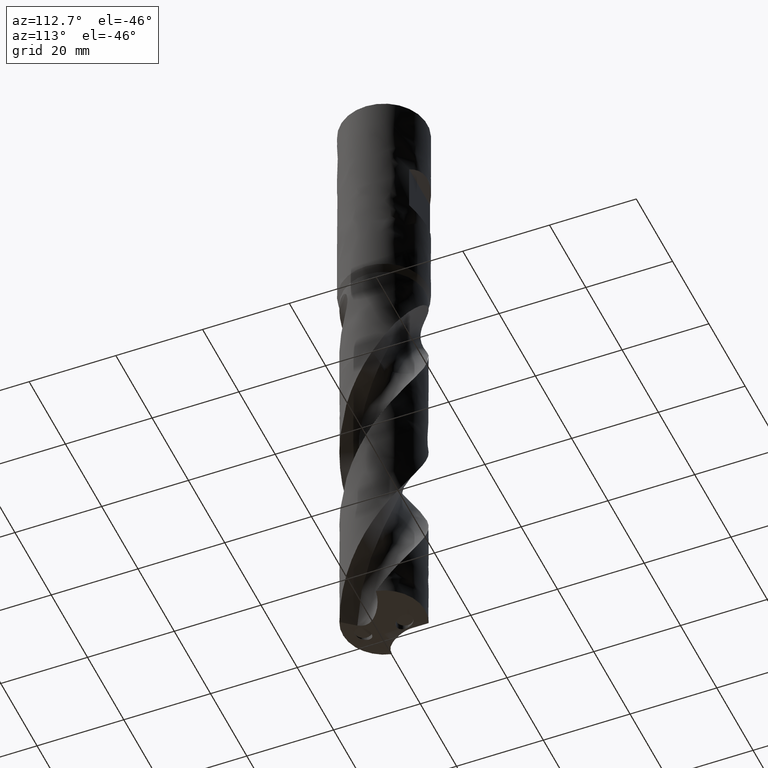
[diagram: clean part render]
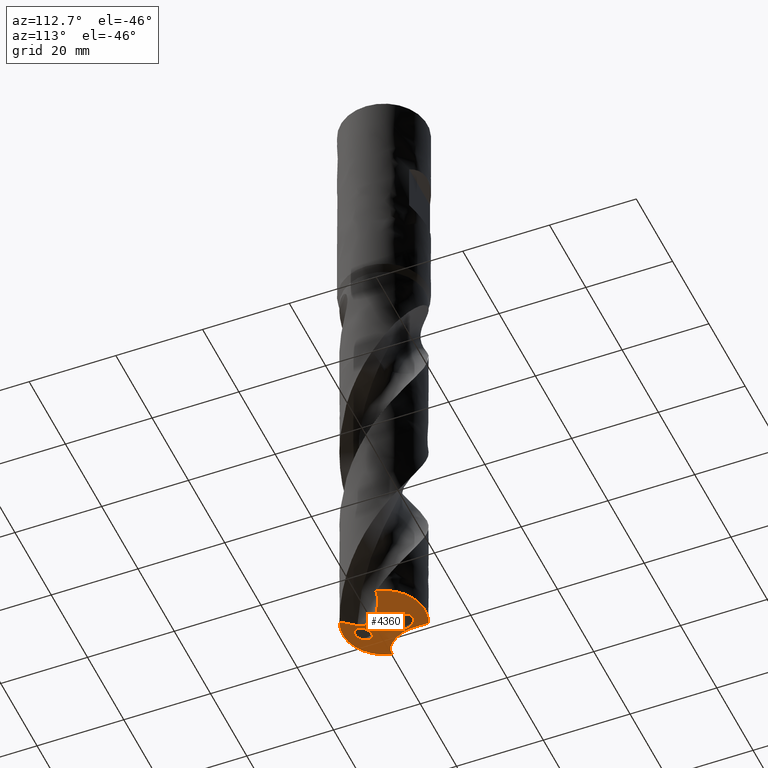
[diagram: same view with one face highlighted and labeled with its STEP entity id]
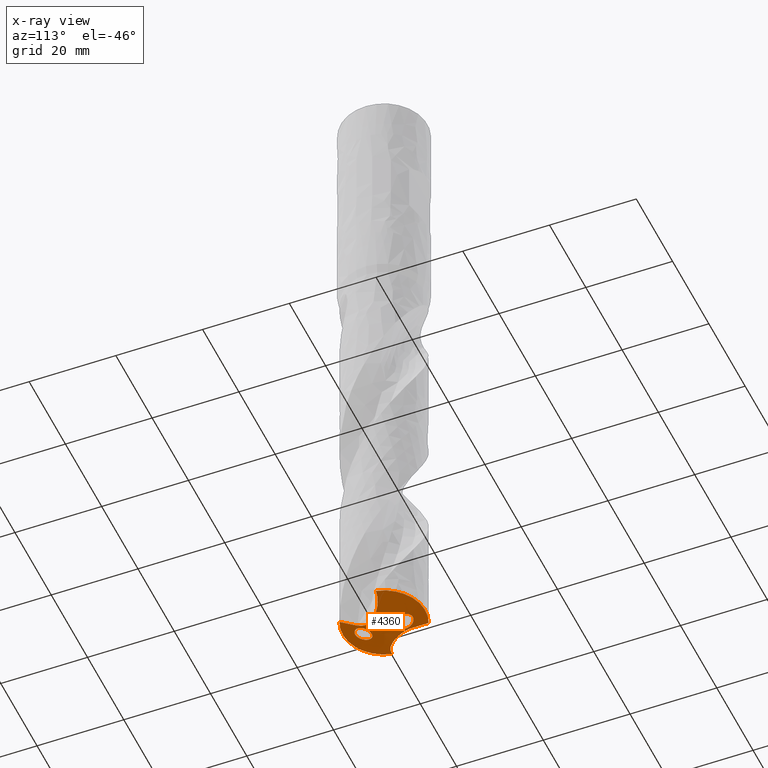
[diagram: x-ray of the same camera — body ghosted, the highlighted face saturated]
A machine part, auxiliary view. The second image highlights one B-rep face of the part: STEP entity #4360.
The next image is the same camera in x-ray: the body ghosted, the highlighted face saturated — about 0% of this face is hidden behind the body in this view.
In plain terms, the highlighted face is a freeform B-spline surface patch.
Its self-contained STEP definition (entity closure, byte-faithful):
#2106 = VERTEX_POINT('', #2107);
#2107 = CARTESIAN_POINT('', (2.57883681447537, -5.07026758404952, -150.929587940165));
#2156 = EDGE_CURVE('', #2106, #2157, #2159, .T.);
#2157 = VERTEX_POINT('', #2158);
#2158 = CARTESIAN_POINT('', (9.28584694925255, 2.00575333355252, -149.542282774471));
#2159 = B_SPLINE_CURVE_WITH_KNOTS('', 3, (#2160, #2161, #2162, #2163, #2164, #2165, #2166, #2167, #2168, #2169, #2170, #2171, #2172, #2173, #2174, #2175, #2176, #2177, #2178, #2179, #2180, #2181, #2182, #2183, #2184, #2185, #2186, #2187, #2188, #2189, #2190, #2191, #2192, #2193, #2194, #2195, #2196, #2197, #2198, #2199, #2200, #2201, #2202, #2203, #2204, #2205, #2206, #2207, #2208, #2209, #2210, #2211, #2212, #2213, #2214, #2215, #2216, #2217, #2218, #2219, #2220, #2221, #2222, #2223, #2224, #2225, #2226, #2227, #2228, #2229, #2230, #2231, #2232, #2233, #2234, #2235, #2236, #2237, #2238, #2239, #2240, #2241, #2242, #2243, #2244, #2245, #2246, #2247, #2248, #2249, #2250, #2251, #2252, #2253, #2254, #2255, #2256, #2257, #2258, #2259, #2260, #2261, #2262, #2263, #2264, #2265, #2266, #2267, #2268, #2269, #2270, #2271, #2272, #2273, #2274, #2275, #2276, #2277, #2278, #2279, #2280, #2281, #2282, #2283, #2284, #2285, #2286, #2287, #2288, #2289, #2290, #2291, #2292, #2293, #2294, #2295, #2296, #2297, #2298), .UNSPECIFIED., .F., .U., (4, 3, 3, 3, 3, 3, 3, 3, 3, 3, 3, 3, 3, 3, 3, 3, 3, 3, 3, 3, 3, 3, 3, 3, 3, 3, 3, 3, 3, 3, 3, 3, 3, 3, 3, 3, 3, 3, 3, 3, 3, 3, 3, 3, 3, 3, 4), (0., 0.295876799741462, 0.591577136931585, 0.887049416258827, 1.18223937826875, 1.4770975422446, 1.67367076070449, 1.87013688775231, 2.06650218597223, 2.26278046402579, 2.4589937744, 2.6551720202962, 2.85135110460604, 3.04756955144955, 3.24386400522145, 3.44026449857956, 3.63679062545874, 3.83344957017936, 4.03023636756879, 4.22713607463902, 4.42412704958015, 4.62118442728554, 4.81828309419723, 5.01539981283166, 5.21251445624487, 5.4096105025947, 5.49719563868032, 5.53612048859962, 5.83318275237604, 5.92088200137404, 6.00865791710984, 6.3063146272012, 6.60352186243919, 6.90034210580515, 7.19682941790859, 7.49302944792201, 7.78898015051191, 8.0847127609433, 8.38025279766103, 8.67562098526566, 8.97083405727262, 9.26590543163126, 9.56084576747776, 10.0024895095066, 10.4437505844155, 10.884649732762, 11.336184359537), .UNSPECIFIED.);
#2160 = CARTESIAN_POINT('', (2.57883681447536, -5.07026758404952, -150.929587940165));
#2161 = CARTESIAN_POINT('', (2.55664402972957, -4.97999610875059, -150.962535626137));
#2162 = CARTESIAN_POINT('', (2.53745300842377, -4.88883878155975, -150.995234205111));
#2163 = CARTESIAN_POINT('', (2.52138469255489, -4.79704617314281, -151.027528712748));
#2164 = CARTESIAN_POINT('', (2.50532595991801, -4.70530831034258, -151.059803959763));
#2165 = CARTESIAN_POINT('', (2.4923695660459, -4.61283888851676, -151.091709974194));
#2166 = CARTESIAN_POINT('', (2.48261761228788, -4.51990308544711, -151.123066725311));
#2167 = CARTESIAN_POINT('', (2.47287317969048, -4.42703895879432, -151.154399292642));
#2168 = CARTESIAN_POINT('', (2.46631788320964, -4.33360638970861, -151.185218296728));
#2169 = CARTESIAN_POINT('', (2.46303037792279, -4.23988455670242, -151.215315474139));
#2170 = CARTESIAN_POINT('', (2.45974601377553, -4.14625227286317, -151.245383894355));
#2171 = CARTESIAN_POINT('', (2.4597199195115, -4.05222276289765, -151.274766767512));
#2172 = CARTESIAN_POINT('', (2.46300145419097, -3.95808863840402, -151.303225503517));
#2173 = CARTESIAN_POINT('', (2.46627930037525, -3.86406032210669, -151.331652251468));
#2174 = CARTESIAN_POINT('', (2.4728619763419, -3.76981345405792, -151.359191262154));
#2175 = CARTESIAN_POINT('', (2.48276209074414, -3.6756535685309, -151.38557406399));
#2176 = CARTESIAN_POINT('', (2.4893622042527, -3.61287995731973, -151.40316269779));
#2177 = CARTESIAN_POINT('', (2.49744015281085, -3.55010107391373, -151.420249327317));
#2178 = CARTESIAN_POINT('', (2.50698854827938, -3.48741076010662, -151.436747827263));
#2179 = CARTESIAN_POINT('', (2.51653174186355, -3.42475459944754, -151.453237338968));
#2180 = CARTESIAN_POINT('', (2.52754946762306, -3.36215029751896, -151.469148868096));
#2181 = CARTESIAN_POINT('', (2.54002384316105, -3.29969402723752, -151.484392728042));
#2182 = CARTESIAN_POINT('', (2.55249181669639, -3.2372698102806, -151.499628764651));
#2183 = CARTESIAN_POINT('', (2.56642255712331, -3.17495591251917, -151.514206797387));
#2184 = CARTESIAN_POINT('', (2.58178626773157, -3.11285049024296, -151.528035859487));
#2185 = CARTESIAN_POINT('', (2.59714316984227, -3.05077259026437, -151.541858793176));
#2186 = CARTESIAN_POINT('', (2.61394135461035, -2.98886464025051, -151.554941711637));
#2187 = CARTESIAN_POINT('', (2.63213783960795, -2.92722614081129, -151.567195565095));
#2188 = CARTESIAN_POINT('', (2.65032830160894, -2.86560804358013, -151.579445362555));
#2189 = CARTESIAN_POINT('', (2.66992768102561, -2.80422035055334, -151.590874078225));
#2190 = CARTESIAN_POINT('', (2.69087894531983, -2.74316284925991, -151.601398640557));
#2191 = CARTESIAN_POINT('', (2.71182646549933, -2.68211625930275, -151.611921322087));
#2192 = CARTESIAN_POINT('', (2.73413880261025, -2.62136070606447, -151.621546589721));
#2193 = CARTESIAN_POINT('', (2.75774473348432, -2.56099469467241, -151.630202008246));
#2194 = CARTESIAN_POINT('', (2.78135076524386, -2.50062842529208, -151.638857463762));
#2195 = CARTESIAN_POINT('', (2.80626550388723, -2.44061296418087, -151.646548325626));
#2196 = CARTESIAN_POINT('', (2.83240442389731, -2.38104345306002, -151.653217533229));
#2197 = CARTESIAN_POINT('', (2.85854858857515, -2.32146198955956, -151.659888078981));
#2198 = CARTESIAN_POINT('', (2.88593392213147, -2.26228878272839, -151.665540582455));
#2199 = CARTESIAN_POINT('', (2.91446469742764, -2.20361316692543, -151.670137460888));
#2200 = CARTESIAN_POINT('', (2.9430065243687, -2.14491482261043, -151.674736119962));
#2201 = CARTESIAN_POINT('', (2.9727121784995, -2.08667806620786, -151.678281086605));
#2202 = CARTESIAN_POINT('', (3.00347799585069, -2.02898392729079, -151.680756968885));
#2203 = CARTESIAN_POINT('', (3.03426043310365, -1.97125862161123, -151.683234188653));
#2204 = CARTESIAN_POINT('', (3.06612221387254, -1.91404222516535, -151.684642683647));
#2205 = CARTESIAN_POINT('', (3.09895583464675, -1.85740532298867, -151.684990009858));
#2206 = CARTESIAN_POINT('', (3.13181045844044, -1.80073219130298, -151.685337558246));
#2207 = CARTESIAN_POINT('', (3.16565624391528, -1.74460762374465, -151.684622957125));
#2208 = CARTESIAN_POINT('', (3.20038621953731, -1.68909036900593, -151.682875338992));
#2209 = CARTESIAN_POINT('', (3.23513966664615, -1.633535594157, -151.68112653977));
#2210 = CARTESIAN_POINT('', (3.27079615160962, -1.57856028699467, -151.678342715362));
#2211 = CARTESIAN_POINT('', (3.3072532521997, -1.52421095281362, -151.674571364964));
#2212 = CARTESIAN_POINT('', (3.34373405442011, -1.4698262848346, -151.670797562722));
#2213 = CARTESIAN_POINT('', (3.38103334401616, -1.41604293986438, -151.666033532576));
#2214 = CARTESIAN_POINT('', (3.41905639886371, -1.3628957665487, -151.660340739429));
#2215 = CARTESIAN_POINT('', (3.45710127006806, -1.30971809916301, -151.654644679948));
#2216 = CARTESIAN_POINT('', (3.49588645738474, -1.25715507695496, -151.648016764153));
#2217 = CARTESIAN_POINT('', (3.53532695419447, -1.20523127284578, -151.640527611639));
#2218 = CARTESIAN_POINT('', (3.57478573264729, -1.15328340077266, -151.633034987718));
#2219 = CARTESIAN_POINT('', (3.61491487024592, -1.10195613064357, -151.62467788129));
#2220 = CARTESIAN_POINT('', (3.65563995163558, -1.05126561771889, -151.61553153402));
#2221 = CARTESIAN_POINT('', (3.69637876085201, -1.00055801776685, -151.606382103651));
#2222 = CARTESIAN_POINT('', (3.73772702553755, -0.950471165633108, -151.596440199906));
#2223 = CARTESIAN_POINT('', (3.77962084944915, -0.901014808314219, -151.585781889338));
#2224 = CARTESIAN_POINT('', (3.82152345132562, -0.851548088461514, -151.575121345547));
#2225 = CARTESIAN_POINT('', (3.86398365648703, -0.802698115830269, -151.563741274849));
#2226 = CARTESIAN_POINT('', (3.90694735068897, -0.754470133460901, -151.551715705922));
#2227 = CARTESIAN_POINT('', (3.94991497981705, -0.706237734023777, -151.539689035606));
#2228 = CARTESIAN_POINT('', (3.99339681259173, -0.658615491427749, -151.527013906955));
#2229 = CARTESIAN_POINT('', (4.03734739798381, -0.611605787457589, -151.51376037597));
#2230 = CARTESIAN_POINT('', (4.08129752066939, -0.564596578399966, -151.500506984516));
#2231 = CARTESIAN_POINT('', (4.12572595313734, -0.518189664344336, -151.48667240278));
#2232 = CARTESIAN_POINT('', (4.17059463708274, -0.472385882677875, -151.47232157732));
#2233 = CARTESIAN_POINT('', (4.21545908782788, -0.426586422434805, -151.457972105809));
#2234 = CARTESIAN_POINT('', (4.26077237053607, -0.381381153675602, -151.443103765563));
#2235 = CARTESIAN_POINT('', (4.30650255642346, -0.33677036219926, -151.427775875479));
#2236 = CARTESIAN_POINT('', (4.3268240424621, -0.316946310348888, -151.420964499179));
#2237 = CARTESIAN_POINT('', (4.34722906196888, -0.297238528458969, -151.414061924122));
#2238 = CARTESIAN_POINT('', (4.36771513861389, -0.277647045742633, -151.407072994136));
#2239 = CARTESIAN_POINT('', (4.37681962248502, -0.268940139999122, -151.403966952826));
#2240 = CARTESIAN_POINT('', (4.38594021358363, -0.260256113451854, -151.400843820205));
#2241 = CARTESIAN_POINT('', (4.39507670579072, -0.251594969580532, -151.397704007504));
#2242 = CARTESIAN_POINT('', (4.46480355287277, -0.185495832123551, -151.373741940326));
#2243 = CARTESIAN_POINT('', (4.53546895254429, -0.120716240172352, -151.34880574523));
#2244 = CARTESIAN_POINT('', (4.60699267224296, -0.0572596263855191, -151.323062289224));
#2245 = CARTESIAN_POINT('', (4.62810803177526, -0.0385258521850718, -151.315462260429));
#2246 = CARTESIAN_POINT('', (4.64929964020876, -0.0199062102596157, -151.307791223786));
#2247 = CARTESIAN_POINT('', (4.67056570965466, -0.00140086620684631, -151.300053028037));
#2248 = CARTESIAN_POINT('', (4.69185036991164, 0.0171206552291574, -151.292308067552));
#2249 = CARTESIAN_POINT('', (4.71321019901039, 0.0355281810353803, -151.284495620121));
#2250 = CARTESIAN_POINT('', (4.73464350781699, 0.0538215034823425, -151.276619354577));
#2251 = CARTESIAN_POINT('', (4.80732595302153, 0.115855948017136, -151.249910168235));
#2252 = CARTESIAN_POINT('', (4.88086666968423, 0.176589301410585, -151.222463583903));
#2253 = CARTESIAN_POINT('', (4.95520700466665, 0.236009581394623, -151.194407645031));
#2254 = CARTESIAN_POINT('', (5.02943508244124, 0.295340134116592, -151.166394071872));
#2255 = CARTESIAN_POINT('', (5.10448125867046, 0.353378109620916, -151.137764943778));
#2256 = CARTESIAN_POINT('', (5.18029502280543, 0.41010527239786, -151.108627605731));
#2257 = CARTESIAN_POINT('', (5.25601007026386, 0.466758571054706, -151.079528207248));
#2258 = CARTESIAN_POINT('', (5.33251069552523, 0.522119288663904, -151.049914084906));
#2259 = CARTESIAN_POINT('', (5.40975131327807, 0.576162998409096, -151.019875708476));
#2260 = CARTESIAN_POINT('', (5.48690529335385, 0.630146089510786, -150.989871024878));
#2261 = CARTESIAN_POINT('', (5.56481715199266, 0.68282869203592, -150.959435296958));
#2262 = CARTESIAN_POINT('', (5.64344390830427, 0.734180505029147, -150.928645423648));
#2263 = CARTESIAN_POINT('', (5.72199447903235, 0.785482560560381, -150.897885384259));
#2264 = CARTESIAN_POINT('', (5.80127802729124, 0.835469028531806, -150.866764142389));
#2265 = CARTESIAN_POINT('', (5.88125247044773, 0.884104140127289, -150.835347786003));
#2266 = CARTESIAN_POINT('', (5.96115959483366, 0.932698312945468, -150.803957874446));
#2267 = CARTESIAN_POINT('', (6.0417761253942, 0.979955295044922, -150.77226551584));
#2268 = CARTESIAN_POINT('', (6.12305958185854, 1.02583426205607, -150.740328252365));
#2269 = CARTESIAN_POINT('', (6.20428313887234, 1.07167941991299, -150.708414524117));
#2270 = CARTESIAN_POINT('', (6.28619276296665, 1.11615988968821, -150.676248262846));
#2271 = CARTESIAN_POINT('', (6.36874454684274, 1.15923017418759, -150.643880310553));
#2272 = CARTESIAN_POINT('', (6.4512425750523, 1.20227241238993, -150.611533435464));
#2273 = CARTESIAN_POINT('', (6.5344027081843, 1.24391708935601, -150.578976917845));
#2274 = CARTESIAN_POINT('', (6.61817874925078, 1.28411437869187, -150.546256402428));
#2275 = CARTESIAN_POINT('', (6.70190607665223, 1.32428829431295, -150.513554913169));
#2276 = CARTESIAN_POINT('', (6.78627022107372, 1.36302683158465, -150.480681118342));
#2277 = CARTESIAN_POINT('', (6.871221930887, 1.40027614380108, -150.447676694562));
#2278 = CARTESIAN_POINT('', (6.95612902744877, 1.43750589416363, -150.414689603389));
#2279 = CARTESIAN_POINT('', (7.04164571555636, 1.47325786433686, -150.381563182509));
#2280 = CARTESIAN_POINT('', (7.12771897384996, 1.50747447307794, -150.348336153818));
#2281 = CARTESIAN_POINT('', (7.21375091832843, 1.54167465838304, -150.31512507358));
#2282 = CARTESIAN_POINT('', (7.3003627275211, 1.57435038130352, -150.281804251988));
#2283 = CARTESIAN_POINT('', (7.38749691182454, 1.60544060421778, -150.248410301022));
#2284 = CARTESIAN_POINT('', (7.47459240062966, 1.63651702024697, -150.215031180005));
#2285 = CARTESIAN_POINT('', (7.56223498040524, 1.66601827994481, -150.181569320794));
#2286 = CARTESIAN_POINT('', (7.65036198831815, 1.69388017761641, -150.148059939157));
#2287 = CARTESIAN_POINT('', (7.78232339480656, 1.73560059104306, -150.097882981649));
#2288 = CARTESIAN_POINT('', (7.91544817961462, 1.77366884534835, -150.047570798149));
#2289 = CARTESIAN_POINT('', (8.04950034370199, 1.8078572506004, -149.997238869778));
#2290 = CARTESIAN_POINT('', (8.18343635680457, 1.84201603292942, -149.946950552065));
#2291 = CARTESIAN_POINT('', (8.31839683501219, 1.87232641096813, -149.89660539396));
#2292 = CARTESIAN_POINT('', (8.45411047589626, 1.89854948316567, -149.846318705095));
#2293 = CARTESIAN_POINT('', (8.58971280315149, 1.92475104694809, -149.796073261855));
#2294 = CARTESIAN_POINT('', (8.72617569100644, 1.94689246882277, -149.745845908432));
#2295 = CARTESIAN_POINT('', (8.86318640300289, 1.96472752523066, -149.695755058677));
#2296 = CARTESIAN_POINT('', (9.00350212131969, 1.9829928032854, -149.64445590504));
#2297 = CARTESIAN_POINT('', (9.14451535868284, 1.99675685429352, -149.59325501418));
#2298 = CARTESIAN_POINT('', (9.28584694925256, 2.00575333355252, -149.542282774471));
#2659 = VERTEX_POINT('', #2660);
#2660 = CARTESIAN_POINT('', (3.81613556728855, -8.6998338680733, -149.542282774471));
#2844 = EDGE_CURVE('', #2106, #2659, #2845, .T.);
#2845 = B_SPLINE_CURVE_WITH_KNOTS('', 3, (#2846, #2847, #2848, #2849, #2850, #2851, #2852, #2853, #2854, #2855, #2856, #2857, #2858, #2859, #2860, #2861, #2862, #2863, #2864, #2865, #2866, #2867, #2868, #2869, #2870, #2871, #2872, #2873, #2874, #2875, #2876), .UNSPECIFIED., .F., .U., (4, 3, 3, 3, 3, 3, 3, 3, 3, 3, 4), (0., 0.443762066677287, 0.88743309214222, 1.33104084829736, 1.77460566131111, 2.21814255740817, 2.66166274186849, 3.10517463095875, 3.5486845809453, 3.99219740945982, 4.08242864537849), .UNSPECIFIED.);
#2846 = CARTESIAN_POINT('', (2.57883681447537, -5.07026758404952, -150.929587940165));
#2847 = CARTESIAN_POINT('', (2.61212200626033, -5.20565858623578, -150.880172327882));
#2848 = CARTESIAN_POINT('', (2.64669070493799, -5.34067312312604, -150.830571611274));
#2849 = CARTESIAN_POINT('', (2.68253283982852, -5.47529061588098, -150.780832268563));
#2850 = CARTESIAN_POINT('', (2.7183676214285, -5.60988049081848, -150.731103130263));
#2851 = CARTESIAN_POINT('', (2.75547824916739, -5.74408448520157, -150.681231129132));
#2852 = CARTESIAN_POINT('', (2.79385345874391, -5.87787948279049, -150.631253182853));
#2853 = CARTESIAN_POINT('', (2.83222319585799, -6.01165540066344, -150.581282363634));
#2854 = CARTESIAN_POINT('', (2.87186026341639, -6.14503326562544, -150.531201426819));
#2855 = CARTESIAN_POINT('', (2.91275235583009, -6.27798821036482, -150.481040334829));
#2856 = CARTESIAN_POINT('', (2.95364048971312, -6.41093028449292, -150.430884098648));
#2857 = CARTESIAN_POINT('', (2.99578669030979, -6.54346018932787, -150.380643586255));
#2858 = CARTESIAN_POINT('', (3.03917771707103, -6.67555187556182, -150.330343607943));
#2859 = CARTESIAN_POINT('', (3.08256601290401, -6.80763524825851, -150.280046795391));
#2860 = CARTESIAN_POINT('', (3.12720243624613, -6.93929097593005, -150.229686439339));
#2861 = CARTESIAN_POINT('', (3.17307288995943, -7.07049224480407, -150.179283468861));
#2862 = CARTESIAN_POINT('', (3.21894161536022, -7.20168857026083, -150.128882397472));
#2863 = CARTESIAN_POINT('', (3.26604790620775, -7.33244084215817, -150.078434672734));
#2864 = CARTESIAN_POINT('', (3.31437686979033, -7.4627217930424, -150.027958253525));
#2865 = CARTESIAN_POINT('', (3.3627049294532, -7.59300030721972, -149.977482778401));
#2866 = CARTESIAN_POINT('', (3.41225941046014, -7.7228177422831, -149.926974605778));
#2867 = CARTESIAN_POINT('', (3.46302467457314, -7.85214661177818, -149.876449387612));
#2868 = CARTESIAN_POINT('', (3.51378971673243, -7.98147491582712, -149.82592439035));
#2869 = CARTESIAN_POINT('', (3.56576948783709, -8.11032473535562, -149.775378378959));
#2870 = CARTESIAN_POINT('', (3.61894764713007, -8.23866854461327, -149.724825188345));
#2871 = CARTESIAN_POINT('', (3.67212615156709, -8.36701318686518, -149.674271669623));
#2872 = CARTESIAN_POINT('', (3.72650717371645, -8.49486173993644, -149.62370703692));
#2873 = CARTESIAN_POINT('', (3.78207370872626, -8.62218677821446, -149.573143674703));
#2874 = CARTESIAN_POINT('', (3.79337853872733, -8.64809064125648, -149.562856723861));
#2875 = CARTESIAN_POINT('', (3.80473254038587, -8.67397308120538, -149.552569724433));
#2876 = CARTESIAN_POINT('', (3.81613556728855, -8.6998338680733, -149.542282774471));
#3208 = VERTEX_POINT('', #3209);
#3209 = CARTESIAN_POINT('', (-9.28584694925255, -2.00575333355252, -149.542282774471));
#3222 = EDGE_CURVE('', #2659, #3208, #3223, .T.);
#3223 = CIRCLE('', #3224, 9.5);
#3224 = AXIS2_PLACEMENT_3D('', #3225, #3226, #3227);
#3225 = CARTESIAN_POINT('', (5.60693753781497E-31, 9.15682389684722E-15, -149.542282774471));
#3226 = DIRECTION('', (3.74939945665464E-33, 6.12323399573677E-17, -1.));
#3227 = DIRECTION('', (-1., 6.12323399573677E-17, 0.));
#3255 = VERTEX_POINT('', #3256);
#3256 = CARTESIAN_POINT('', (-2.57883681447538, 5.07026758404953, -150.929587940165));
#3305 = EDGE_CURVE('', #3255, #3306, #3308, .T.);
#3306 = VERTEX_POINT('', #3307);
#3307 = CARTESIAN_POINT('', (-4.67217595776878, 9.5505086666536E-15, -151.299467022118));
#3308 = B_SPLINE_CURVE_WITH_KNOTS('', 3, (#3309, #3310, #3311, #3312, #3313, #3314, #3315, #3316, #3317, #3318, #3319, #3320, #3321, #3322, #3323, #3324, #3325, #3326, #3327, #3328, #3329, #3330, #3331, #3332, #3333, #3334, #3335, #3336, #3337, #3338, #3339, #3340, #3341, #3342, #3343, #3344, #3345, #3346, #3347, #3348, #3349, #3350, #3351, #3352, #3353, #3354, #3355, #3356, #3357, #3358, #3359, #3360, #3361, #3362, #3363, #3364, #3365, #3366, #3367, #3368, #3369, #3370, #3371, #3372, #3373, #3374, #3375, #3376, #3377, #3378, #3379, #3380, #3381, #3382, #3383, #3384, #3385, #3386, #3387, #3388, #3389, #3390, #3391, #3392, #3393, #3394, #3395, #3396), .UNSPECIFIED., .F., .U., (4, 3, 3, 3, 3, 3, 3, 3, 3, 3, 3, 3, 3, 3, 3, 3, 3, 3, 3, 3, 3, 3, 3, 3, 3, 3, 3, 3, 3, 4), (0., 0.29587679974146, 0.591577136931556, 0.887049416258796, 1.18223937826871, 1.47709754224455, 1.67367076070444, 1.87013688775226, 2.06650218597216, 2.26278046402572, 2.45899377439993, 2.65517202029613, 2.85135110460597, 3.04756955144947, 3.24386400522137, 3.44026449857948, 3.63679062545866, 3.83344957017929, 4.03023636756871, 4.22713607463894, 4.42412704958006, 4.62118442728545, 4.81828309419714, 5.01539981283158, 5.21251445624479, 5.40961050259462, 5.49719563868023, 5.53612048859953, 5.83318275237596, 5.92309527739643), .UNSPECIFIED.);
#3309 = CARTESIAN_POINT('', (-2.57883681447536, 5.07026758404954, -150.929587940165));
#3310 = CARTESIAN_POINT('', (-2.55664402972957, 4.97999610875061, -150.962535626137));
#3311 = CARTESIAN_POINT('', (-2.53745300842377, 4.88883878155978, -150.995234205111));
#3312 = CARTESIAN_POINT('', (-2.52138469255489, 4.79704617314283, -151.027528712748));
#3313 = CARTESIAN_POINT('', (-2.50532595991801, 4.70530831034262, -151.059803959763));
#3314 = CARTESIAN_POINT('', (-2.4923695660459, 4.61283888851679, -151.091709974194));
#3315 = CARTESIAN_POINT('', (-2.48261761228788, 4.51990308544715, -151.123066725311));
#3316 = CARTESIAN_POINT('', (-2.47287317969049, 4.42703895879436, -151.154399292642));
#3317 = CARTESIAN_POINT('', (-2.46631788320964, 4.33360638970865, -151.185218296728));
#3318 = CARTESIAN_POINT('', (-2.46303037792279, 4.23988455670246, -151.215315474139));
#3319 = CARTESIAN_POINT('', (-2.45974601377553, 4.14625227286322, -151.245383894355));
#3320 = CARTESIAN_POINT('', (-2.4597199195115, 4.05222276289771, -151.274766767512));
#3321 = CARTESIAN_POINT('', (-2.46300145419097, 3.95808863840408, -151.303225503517));
#3322 = CARTESIAN_POINT('', (-2.46627930037526, 3.86406032210675, -151.331652251468));
#3323 = CARTESIAN_POINT('', (-2.4728619763419, 3.76981345405798, -151.359191262154));
#3324 = CARTESIAN_POINT('', (-2.48276209074413, 3.67565356853096, -151.38557406399));
#3325 = CARTESIAN_POINT('', (-2.4893622042527, 3.61287995731979, -151.40316269779));
#3326 = CARTESIAN_POINT('', (-2.49744015281084, 3.55010107391379, -151.420249327317));
#3327 = CARTESIAN_POINT('', (-2.50698854827938, 3.48741076010668, -151.436747827263));
#3328 = CARTESIAN_POINT('', (-2.51653174186354, 3.4247545994476, -151.453237338968));
#3329 = CARTESIAN_POINT('', (-2.52754946762305, 3.36215029751902, -151.469148868096));
#3330 = CARTESIAN_POINT('', (-2.54002384316103, 3.29969402723759, -151.484392728042));
#3331 = CARTESIAN_POINT('', (-2.55249181669637, 3.23726981028068, -151.499628764651));
#3332 = CARTESIAN_POINT('', (-2.5664225571233, 3.17495591251924, -151.514206797387));
#3333 = CARTESIAN_POINT('', (-2.58178626773156, 3.11285049024304, -151.528035859487));
#3334 = CARTESIAN_POINT('', (-2.59714316984226, 3.05077259026445, -151.541858793176));
#3335 = CARTESIAN_POINT('', (-2.61394135461033, 2.98886464025059, -151.554941711637));
#3336 = CARTESIAN_POINT('', (-2.63213783960793, 2.92722614081137, -151.567195565095));
#3337 = CARTESIAN_POINT('', (-2.65032830160892, 2.86560804358022, -151.579445362555));
#3338 = CARTESIAN_POINT('', (-2.66992768102559, 2.80422035055342, -151.590874078225));
#3339 = CARTESIAN_POINT('', (-2.69087894531981, 2.74316284925999, -151.601398640557));
#3340 = CARTESIAN_POINT('', (-2.7118264654993, 2.68211625930284, -151.611921322087));
#3341 = CARTESIAN_POINT('', (-2.73413880261022, 2.62136070606456, -151.621546589721));
#3342 = CARTESIAN_POINT('', (-2.75774473348429, 2.5609946946725, -151.630202008246));
#3343 = CARTESIAN_POINT('', (-2.78135076524383, 2.50062842529217, -151.638857463762));
#3344 = CARTESIAN_POINT('', (-2.8062655038872, 2.44061296418096, -151.646548325626));
#3345 = CARTESIAN_POINT('', (-2.83240442389728, 2.3810434530601, -151.653217533229));
#3346 = CARTESIAN_POINT('', (-2.85854858857512, 2.32146198955964, -151.659888078981));
#3347 = CARTESIAN_POINT('', (-2.88593392213143, 2.26228878272848, -151.665540582455));
#3348 = CARTESIAN_POINT('', (-2.9144646974276, 2.20361316692551, -151.670137460888));
#3349 = CARTESIAN_POINT('', (-2.94300652436866, 2.14491482261052, -151.674736119962));
#3350 = CARTESIAN_POINT('', (-2.97271217849946, 2.08667806620795, -151.678281086605));
#3351 = CARTESIAN_POINT('', (-3.00347799585065, 2.02898392729088, -151.680756968885));
#3352 = CARTESIAN_POINT('', (-3.03426043310362, 1.97125862161132, -151.683234188653));
#3353 = CARTESIAN_POINT('', (-3.0661222138725, 1.91404222516544, -151.684642683647));
#3354 = CARTESIAN_POINT('', (-3.09895583464671, 1.85740532298876, -151.684990009858));
#3355 = CARTESIAN_POINT('', (-3.1318104584404, 1.80073219130307, -151.685337558246));
#3356 = CARTESIAN_POINT('', (-3.16565624391524, 1.74460762374474, -151.684622957125));
#3357 = CARTESIAN_POINT('', (-3.20038621953726, 1.68909036900601, -151.682875338992));
#3358 = CARTESIAN_POINT('', (-3.23513966664611, 1.63353559415709, -151.68112653977));
#3359 = CARTESIAN_POINT('', (-3.27079615160958, 1.57856028699475, -151.678342715362));
#3360 = CARTESIAN_POINT('', (-3.30725325219966, 1.5242109528137, -151.674571364964));
#3361 = CARTESIAN_POINT('', (-3.34373405442006, 1.46982628483468, -151.670797562722));
#3362 = CARTESIAN_POINT('', (-3.38103334401612, 1.41604293986446, -151.666033532576));
#3363 = CARTESIAN_POINT('', (-3.41905639886366, 1.36289576654878, -151.660340739429));
#3364 = CARTESIAN_POINT('', (-3.45710127006801, 1.3097180991631, -151.654644679948));
#3365 = CARTESIAN_POINT('', (-3.49588645738469, 1.25715507695504, -151.648016764153));
#3366 = CARTESIAN_POINT('', (-3.53532695419442, 1.20523127284586, -151.640527611639));
#3367 = CARTESIAN_POINT('', (-3.57478573264725, 1.15328340077275, -151.633034987718));
#3368 = CARTESIAN_POINT('', (-3.61491487024586, 1.10195613064366, -151.62467788129));
#3369 = CARTESIAN_POINT('', (-3.65563995163553, 1.05126561771898, -151.61553153402));
#3370 = CARTESIAN_POINT('', (-3.69637876085196, 1.00055801776693, -151.606382103651));
#3371 = CARTESIAN_POINT('', (-3.73772702553749, 0.950471165633193, -151.596440199906));
#3372 = CARTESIAN_POINT('', (-3.77962084944909, 0.901014808314304, -151.585781889338));
#3373 = CARTESIAN_POINT('', (-3.82152345132556, 0.851548088461596, -151.575121345547));
#3374 = CARTESIAN_POINT('', (-3.86398365648698, 0.80269811583035, -151.56374127485));
#3375 = CARTESIAN_POINT('', (-3.90694735068892, 0.75447013346098, -151.551715705922));
#3376 = CARTESIAN_POINT('', (-3.94991497981699, 0.706237734023855, -151.539689035606));
#3377 = CARTESIAN_POINT('', (-3.99339681259168, 0.658615491427825, -151.527013906955));
#3378 = CARTESIAN_POINT('', (-4.03734739798376, 0.611605787457665, -151.51376037597));
#3379 = CARTESIAN_POINT('', (-4.08129752066934, 0.564596578400043, -151.500506984516));
#3380 = CARTESIAN_POINT('', (-4.12572595313728, 0.518189664344416, -151.48667240278));
#3381 = CARTESIAN_POINT('', (-4.17059463708268, 0.472385882677956, -151.47232157732));
#3382 = CARTESIAN_POINT('', (-4.21545908782782, 0.426586422434884, -151.457972105809));
#3383 = CARTESIAN_POINT('', (-4.26077237053601, 0.381381153675684, -151.443103765563));
#3384 = CARTESIAN_POINT('', (-4.3065025564234, 0.33677036219934, -151.427775875479));
#3385 = CARTESIAN_POINT('', (-4.32682404246204, 0.316946310348969, -151.420964499179));
#3386 = CARTESIAN_POINT('', (-4.34722906196882, 0.297238528459046, -151.414061924122));
#3387 = CARTESIAN_POINT('', (-4.36771513861382, 0.277647045742712, -151.407072994136));
#3388 = CARTESIAN_POINT('', (-4.37681962248496, 0.268940139999201, -151.403966952826));
#3389 = CARTESIAN_POINT('', (-4.38594021358357, 0.260256113451934, -151.400843820205));
#3390 = CARTESIAN_POINT('', (-4.39507670579066, 0.251594969580611, -151.397704007504));
#3391 = CARTESIAN_POINT('', (-4.46480355287271, 0.18549583212363, -151.373741940326));
#3392 = CARTESIAN_POINT('', (-4.53546895254423, 0.120716240172427, -151.34880574523));
#3393 = CARTESIAN_POINT('', (-4.6069926722429, 0.0572596263855928, -151.323062289224));
#3394 = CARTESIAN_POINT('', (-4.62864092252959, 0.0380530657733799, -151.31527045763));
#3395 = CARTESIAN_POINT('', (-4.65036932611494, 0.0189664639770664, -151.30740398695));
#3396 = CARTESIAN_POINT('', (-4.67217595776878, 9.62510177612061E-15, -151.299467022118));
#3398 = EDGE_CURVE('', #3306, #3208, #3399, .T.);
#3399 = B_SPLINE_CURVE_WITH_KNOTS('', 3, (#3400, #3401, #3402, #3403, #3404, #3405, #3406, #3407, #3408, #3409, #3410, #3411, #3412, #3413, #3414, #3415, #3416, #3417, #3418, #3419, #3420, #3421, #3422, #3423, #3424, #3425, #3426, #3427, #3428, #3429, #3430, #3431, #3432, #3433, #3434, #3435, #3436, #3437, #3438, #3439, #3440, #3441, #3442, #3443, #3444, #3445, #3446, #3447, #3448, #3449, #3450, #3451), .UNSPECIFIED., .F., .U., (4, 3, 3, 3, 3, 3, 3, 3, 3, 3, 3, 3, 3, 3, 3, 3, 3, 4), (0., 0.297798365159832, 0.595127912697432, 0.892053361302293, 1.18863123610718, 1.48490954822322, 1.78092836741192, 2.07672075407446, 2.37231376899299, 2.66772942545472, 2.96298552828481, 3.25809638547844, 3.55307339771957, 3.84792553915268, 4.28938395364749, 4.73047087940842, 5.1712022964214, 5.41312305563947), .UNSPECIFIED.);
#3400 = CARTESIAN_POINT('', (-4.67217595776878, 9.62510177612061E-15, -151.299467022118));
#3401 = CARTESIAN_POINT('', (-4.7444014820178, -0.0628186335990848, -151.273179081137));
#3402 = CARTESIAN_POINT('', (-4.81749875072672, -0.124332104752452, -151.246114282688));
#3403 = CARTESIAN_POINT('', (-4.89140601081282, -0.184530170094881, -151.21840737458));
#3404 = CARTESIAN_POINT('', (-4.96519692027382, -0.24463346690545, -151.190744084867));
#3405 = CARTESIAN_POINT('', (-5.03981653019184, -0.303442634840845, -151.162432587342));
#3406 = CARTESIAN_POINT('', (-5.11521236918464, -0.360941244872922, -151.133585758898));
#3407 = CARTESIAN_POINT('', (-5.19050573811241, -0.418361708864216, -151.104778136018));
#3408 = CARTESIAN_POINT('', (-5.26659342245168, -0.474490432127084, -151.075428753012));
#3409 = CARTESIAN_POINT('', (-5.34342869356394, -0.529304740239816, -151.045632562573));
#3410 = CARTESIAN_POINT('', (-5.42017402315291, -0.584054884039743, -151.015871250839));
#3411 = CARTESIAN_POINT('', (-5.4976848216595, -0.637507577251549, -150.985656418806));
#3412 = CARTESIAN_POINT('', (-5.57591755754206, -0.68963416578248, -150.955068556174));
#3413 = CARTESIAN_POINT('', (-5.65407127334015, -0.741708103113349, -150.924511589245));
#3414 = CARTESIAN_POINT('', (-5.73296492422975, -0.792471482879684, -150.893574611482));
#3415 = CARTESIAN_POINT('', (-5.81255631714744, -0.841890063341804, -150.862326562766));
#3416 = CARTESIAN_POINT('', (-5.89207800059705, -0.891265360945932, -150.831105882397));
#3417 = CARTESIAN_POINT('', (-5.97231579176883, -0.939310299041818, -150.799566879279));
#3418 = CARTESIAN_POINT('', (-6.05322743942229, -0.985985464045107, -150.767769343513));
#3419 = CARTESIAN_POINT('', (-6.13407719564322, -1.03262492599563, -150.735996130512));
#3420 = CARTESIAN_POINT('', (-6.21561975000001, -1.07790816637634, -150.703956844154));
#3421 = CARTESIAN_POINT('', (-6.29781169902479, -1.12179099280844, -150.67170408278));
#3422 = CARTESIAN_POINT('', (-6.37994824854317, -1.16564424107682, -150.639473060605));
#3423 = CARTESIAN_POINT('', (-6.46275389019575, -1.20810989038292, -150.607020707922));
#3424 = CARTESIAN_POINT('', (-6.54618316595755, -1.24913932440777, -150.574394025124));
#3425 = CARTESIAN_POINT('', (-6.62956238340655, -1.29014414040467, -150.541786918627));
#3426 = CARTESIAN_POINT('', (-6.71358585141218, -1.32972492024187, -150.508997280147));
#3427 = CARTESIAN_POINT('', (-6.79820527006535, -1.36782894156711, -150.476067813449));
#3428 = CARTESIAN_POINT('', (-6.88277898587489, -1.40591238295744, -150.443156131914));
#3429 = CARTESIAN_POINT('', (-6.96797034225518, -1.44253066955056, -150.410096038193));
#3430 = CARTESIAN_POINT('', (-7.05372747195355, -1.47762726391399, -150.376927009486));
#3431 = CARTESIAN_POINT('', (-7.13944241505944, -1.51270659317388, -150.343774297653));
#3432 = CARTESIAN_POINT('', (-7.22574604629491, -1.54627528576039, -150.310503645793));
#3433 = CARTESIAN_POINT('', (-7.31258223053632, -1.57827326777037, -150.277152193523));
#3434 = CARTESIAN_POINT('', (-7.39937903098457, -1.61025673737501, -150.243815867513));
#3435 = CARTESIAN_POINT('', (-7.48673267634122, -1.6406800020795, -150.210389273232));
#3436 = CARTESIAN_POINT('', (-7.57458206236774, -1.66947973498173, -150.176907960722));
#3437 = CARTESIAN_POINT('', (-7.66239425965289, -1.69826727626979, -150.143440821651));
#3438 = CARTESIAN_POINT('', (-7.75072802219053, -1.72544121308498, -150.109908989427));
#3439 = CARTESIAN_POINT('', (-7.83951655716166, -1.75093527283569, -150.076347063108));
#3440 = CARTESIAN_POINT('', (-7.97245249475791, -1.78910547957688, -150.026097488159));
#3441 = CARTESIAN_POINT('', (-8.10648854575923, -1.82353224360509, -149.975750617785));
#3442 = CARTESIAN_POINT('', (-8.24137265587187, -1.85398212602218, -149.925421406886));
#3443 = CARTESIAN_POINT('', (-8.37614326055423, -1.88440638476126, -149.875134548187));
#3444 = CARTESIAN_POINT('', (-8.51186375604582, -1.91088328066996, -149.824826738359));
#3445 = CARTESIAN_POINT('', (-8.64824391368418, -1.93316986916608, -149.774614387888));
#3446 = CARTESIAN_POINT('', (-8.78451415117698, -1.95543849504145, -149.724442507738));
#3447 = CARTESIAN_POINT('', (-8.92155681065071, -1.97354158796744, -149.674324010975));
#3448 = CARTESIAN_POINT('', (-9.05903719778387, -1.98723119001144, -149.624379793771));
#3449 = CARTESIAN_POINT('', (-9.13450120681291, -1.99474551459107, -149.596965040754));
#3450 = CARTESIAN_POINT('', (-9.21012508061908, -2.0009332489708, -149.56959240301));
#3451 = CARTESIAN_POINT('', (-9.28584694925255, -2.00575333355252, -149.542282774471));
#3886 = VERTEX_POINT('', #3887);
#3887 = CARTESIAN_POINT('', (-3.81613556728856, 8.69983386807331, -149.542282774471));
#3936 = EDGE_CURVE('', #3255, #3886, #3937, .T.);
#3937 = B_SPLINE_CURVE_WITH_KNOTS('', 3, (#3938, #3939, #3940, #3941, #3942, #3943, #3944, #3945, #3946, #3947, #3948, #3949, #3950, #3951, #3952, #3953, #3954, #3955, #3956, #3957, #3958, #3959, #3960, #3961, #3962, #3963, #3964, #3965, #3966, #3967, #3968), .UNSPECIFIED., .F., .U., (4, 3, 3, 3, 3, 3, 3, 3, 3, 3, 4), (0., 0.443762066677282, 0.887433092142222, 1.33104084829734, 1.77460566131107, 2.21814255740814, 2.66166274186844, 3.10517463095871, 3.54868458094525, 3.99219740945977, 4.08242864537849), .UNSPECIFIED.);
#3938 = CARTESIAN_POINT('', (-2.57883681447538, 5.07026758404953, -150.929587940165));
#3939 = CARTESIAN_POINT('', (-2.61212200626034, 5.20565858623579, -150.880172327882));
#3940 = CARTESIAN_POINT('', (-2.64669070493798, 5.34067312312606, -150.830571611274));
#3941 = CARTESIAN_POINT('', (-2.68253283982851, 5.47529061588099, -150.780832268563));
#3942 = CARTESIAN_POINT('', (-2.71836762142849, 5.6098804908185, -150.731103130263));
#3943 = CARTESIAN_POINT('', (-2.75547824916737, 5.74408448520159, -150.681231129132));
#3944 = CARTESIAN_POINT('', (-2.79385345874389, 5.87787948279051, -150.631253182853));
#3945 = CARTESIAN_POINT('', (-2.83222319585797, 6.01165540066345, -150.581282363634));
#3946 = CARTESIAN_POINT('', (-2.8718602634164, 6.14503326562545, -150.531201426819));
#3947 = CARTESIAN_POINT('', (-2.91275235583009, 6.27798821036482, -150.481040334829));
#3948 = CARTESIAN_POINT('', (-2.95364048971312, 6.41093028449291, -150.430884098648));
#3949 = CARTESIAN_POINT('', (-2.99578669030979, 6.54346018932785, -150.380643586255));
#3950 = CARTESIAN_POINT('', (-3.03917771707102, 6.6755518755618, -150.330343607943));
#3951 = CARTESIAN_POINT('', (-3.082566012904, 6.80763524825849, -150.280046795391));
#3952 = CARTESIAN_POINT('', (-3.1272024362461, 6.93929097593005, -150.229686439339));
#3953 = CARTESIAN_POINT('', (-3.17307288995939, 7.07049224480407, -150.179283468861));
#3954 = CARTESIAN_POINT('', (-3.21894161536019, 7.20168857026082, -150.128882397472));
#3955 = CARTESIAN_POINT('', (-3.26604790620775, 7.33244084215814, -150.078434672734));
#3956 = CARTESIAN_POINT('', (-3.31437686979033, 7.46272179304236, -150.027958253525));
#3957 = CARTESIAN_POINT('', (-3.3627049294532, 7.59300030721969, -149.977482778401));
#3958 = CARTESIAN_POINT('', (-3.41225941046012, 7.72281774228307, -149.926974605778));
#3959 = CARTESIAN_POINT('', (-3.46302467457312, 7.85214661177816, -149.876449387612));
#3960 = CARTESIAN_POINT('', (-3.51378971673241, 7.98147491582709, -149.82592439035));
#3961 = CARTESIAN_POINT('', (-3.56576948783707, 8.11032473535559, -149.775378378959));
#3962 = CARTESIAN_POINT('', (-3.61894764713005, 8.23866854461324, -149.724825188345));
#3963 = CARTESIAN_POINT('', (-3.67212615156707, 8.36701318686515, -149.674271669623));
#3964 = CARTESIAN_POINT('', (-3.72650717371642, 8.49486173993643, -149.62370703692));
#3965 = CARTESIAN_POINT('', (-3.78207370872622, 8.62218677821444, -149.573143674703));
#3966 = CARTESIAN_POINT('', (-3.7933785387273, 8.64809064125647, -149.562856723861));
#3967 = CARTESIAN_POINT('', (-3.80473254038587, 8.67397308120538, -149.552569724433));
#3968 = CARTESIAN_POINT('', (-3.81613556728856, 8.69983386807331, -149.542282774471));
#4343 = EDGE_CURVE('', #3886, #2157, #4344, .T.);
#4344 = CIRCLE('', #4345, 9.5);
#4345 = AXIS2_PLACEMENT_3D('', #4346, #4347, #4348);
#4346 = CARTESIAN_POINT('', (5.60693753781497E-31, 9.15682389684722E-15, -149.542282774471));
#4347 = DIRECTION('', (3.74939945665464E-33, 6.12323399573677E-17, -1.));
#4348 = DIRECTION('', (-1., 6.12323399573677E-17, 0.));
#4360 = ADVANCED_FACE('', (#4361, #4379, #4609), #4839, .T.);
#4361 = FACE_OUTER_BOUND('', #4362, .T.);
#4362 = EDGE_LOOP('', (#4363, #4364, #4372, #4373, #4374, #4375, #4376, #4377, #4378));
#4363 = ORIENTED_EDGE('', *, *, #3398, .F.);
#4364 = ORIENTED_EDGE('', *, *, #4365, .T.);
#4365 = EDGE_CURVE('', #3306, #4366, #4368, .T.);
#4366 = VERTEX_POINT('', #4367);
#4367 = CARTESIAN_POINT('', (5.73658116868161E-31, 9.36854801347725E-15, -153.));
#4368 = LINE('', #4369, #4370);
#4369 = CARTESIAN_POINT('', (-4.67217595776878, 9.5505086666536E-15, -151.299467022118));
#4370 = VECTOR('', #4371, 4.9720258033539);
#4371 = DIRECTION('', (4.67217595776878, -1.81960653176351E-16, -1.70053297788203));
#4372 = ORIENTED_EDGE('', *, *, #4365, .F.);
#4373 = ORIENTED_EDGE('', *, *, #3305, .F.);
#4374 = ORIENTED_EDGE('', *, *, #3936, .T.);
#4375 = ORIENTED_EDGE('', *, *, #4343, .T.);
#4376 = ORIENTED_EDGE('', *, *, #2156, .F.);
#4377 = ORIENTED_EDGE('', *, *, #2844, .T.);
#4378 = ORIENTED_EDGE('', *, *, #3222, .T.);
#4379 = FACE_BOUND('', #4380, .T.);
#4380 = EDGE_LOOP('', (#4381, #4488));
#4381 = ORIENTED_EDGE('', *, *, #4382, .F.);
#4382 = EDGE_CURVE('', #4383, #4385, #4387, .T.);
#4383 = VERTEX_POINT('', #4384);
#4384 = CARTESIAN_POINT('', (-1.90000000000002, 4.75, -151.137962288406));
#4385 = VERTEX_POINT('', #4386);
#4386 = CARTESIAN_POINT('', (1.89999999999998, 4.75000000000002, -151.137962288406));
#4387 = B_SPLINE_CURVE_WITH_KNOTS('', 3, (#4388, #4389, #4390, #4391, #4392, #4393, #4394, #4395, #4396, #4397, #4398, #4399, #4400, #4401, #4402, #4403, #4404, #4405, #4406, #4407, #4408, #4409, #4410, #4411, #4412, #4413, #4414, #4415, #4416, #4417, #4418, #4419, #4420, #4421, #4422, #4423, #4424, #4425, #4426, #4427, #4428, #4429, #4430, #4431, #4432, #4433, #4434, #4435, #4436, #4437, #4438, #4439, #4440, #4441, #4442, #4443, #4444, #4445, #4446, #4447, #4448, #4449, #4450, #4451, #4452, #4453, #4454, #4455, #4456, #4457, #4458, #4459, #4460, #4461, #4462, #4463, #4464, #4465, #4466, #4467, #4468, #4469, #4470, #4471, #4472, #4473, #4474, #4475, #4476, #4477, #4478, #4479, #4480, #4481, #4482, #4483, #4484, #4485, #4486, #4487), .UNSPECIFIED., .F., .U., (4, 3, 3, 3, 3, 3, 3, 3, 3, 3, 3, 3, 3, 3, 3, 3, 3, 3, 3, 3, 3, 3, 3, 3, 3, 3, 3, 3, 3, 3, 3, 3, 3, 4), (0., 0.199069006638524, 0.397961973282412, 0.596677989705001, 0.795208325058584, 0.993537826696675, 1.19164623417254, 1.38950946462375, 1.58710090576727, 1.78439273095738, 1.9813572280034, 2.1779681111093, 2.37420176546703, 2.57003835927222, 2.76546275071242, 2.96046511958387, 3.04754960873611, 3.07353415421613, 3.27329219748412, 3.47258817212907, 3.67143052328775, 3.86983327098101, 4.06781570932138, 4.26540174212043, 4.46261894197973, 4.65949742349942, 4.85606861446679, 5.05236399399756, 5.2484138466258, 5.44424605926575, 5.63988496624838, 5.83535022790888, 6.03065571141032, 6.09851695871503), .UNSPECIFIED.);
#4388 = CARTESIAN_POINT('', (-1.90000000000002, 4.75, -151.137962288406));
#4389 = CARTESIAN_POINT('', (-1.90000000000002, 4.81286377047952, -151.116718239163));
#4390 = CARTESIAN_POINT('', (-1.89687335279519, 4.87590975389382, -151.095777318841));
#4391 = CARTESIAN_POINT('', (-1.89060641883853, 4.93869914956515, -151.075249761823));
#4392 = CARTESIAN_POINT('', (-1.88434502683458, 5.00143301954182, -151.054740357661));
#4393 = CARTESIAN_POINT('', (-1.87493432895271, 5.06405357214646, -151.034596787933));
#4394 = CARTESIAN_POINT('', (-1.86240150764163, 5.12611251552461, -151.014924597716));
#4395 = CARTESIAN_POINT('', (-1.84987983647599, 5.18811624657449, -150.995269909367));
#4396 = CARTESIAN_POINT('', (-1.83421218358142, 5.2497033032745, -150.976040031268));
#4397 = CARTESIAN_POINT('', (-1.81546966451024, 5.31041939406408, -150.95733612833));
#4398 = CARTESIAN_POINT('', (-1.79674465852652, 5.3710787514869, -150.938649702398));
#4399 = CARTESIAN_POINT('', (-1.77490577796699, 5.43101254322505, -150.920443875814));
#4400 = CARTESIAN_POINT('', (-1.75007085442736, 5.48976483052654, -150.902815452294));
#4401 = CARTESIAN_POINT('', (-1.72526105394996, 5.54845768388746, -150.885204861725));
#4402 = CARTESIAN_POINT('', (-1.69740079340045, 5.60611354864317, -150.868127758801));
#4403 = CARTESIAN_POINT('', (-1.66665687884265, 5.66228002729784, -150.85167635981));
#4404 = CARTESIAN_POINT('', (-1.63594723704798, 5.71838389257205, -150.835243300543));
#4405 = CARTESIAN_POINT('', (-1.60228396146823, 5.77314050020187, -150.819393789633));
#4406 = CARTESIAN_POINT('', (-1.56588435832819, 5.82610695395168, -150.804215024758));
#4407 = CARTESIAN_POINT('', (-1.52952980298048, 5.87900785693713, -150.789055044973));
#4408 = CARTESIAN_POINT('', (-1.49035338061628, 5.93025669857906, -150.774525744464));
#4409 = CARTESIAN_POINT('', (-1.44862348045606, 5.97942670048744, -150.760708705591));
#4410 = CARTESIAN_POINT('', (-1.40695090140926, 6.02852916139415, -150.746910646107));
#4411 = CARTESIAN_POINT('', (-1.36262395656747, 6.07568506458523, -150.733787223412));
#4412 = CARTESIAN_POINT('', (-1.31596156151337, 6.12049084952048, -150.721413683855));
#4413 = CARTESIAN_POINT('', (-1.26936992255023, 6.16522869361835, -150.7090589068));
#4414 = CARTESIAN_POINT('', (-1.22032706355471, 6.20774102288634, -150.697419199257));
#4415 = CARTESIAN_POINT('', (-1.16920056687426, 6.24765484488949, -150.686562672088));
#4416 = CARTESIAN_POINT('', (-1.11815889449535, 6.28750244561223, -150.675724157054));
#4417 = CARTESIAN_POINT('', (-1.06490369554033, 6.32486654854928, -150.665637195192));
#4418 = CARTESIAN_POINT('', (-1.0098479477368, 6.35941204247086, -150.656361932703));
#4419 = CARTESIAN_POINT('', (-0.954891042517585, 6.39389551623956, -150.647103322262));
#4420 = CARTESIAN_POINT('', (-0.897990668711976, 6.42566389316235, -150.638628339026));
#4421 = CARTESIAN_POINT('', (-0.839600482490819, 6.45442689189069, -150.630988357419));
#4422 = CARTESIAN_POINT('', (-0.781322326979787, 6.48313470430466, -150.623363034312));
#4423 = CARTESIAN_POINT('', (-0.721399836395767, 6.50892733237555, -150.61654854359));
#4424 = CARTESIAN_POINT('', (-0.660321239665784, 6.53156556445327, -150.610586754787));
#4425 = CARTESIAN_POINT('', (-0.59936622979681, 6.55415799017344, -150.604637029109));
#4426 = CARTESIAN_POINT('', (-0.537090751004204, 6.5736712345698, -150.59952005118));
#4427 = CARTESIAN_POINT('', (-0.474010264887379, 6.58992235400879, -150.595267575203));
#4428 = CARTESIAN_POINT('', (-0.411062552350082, 6.60613926763497, -150.591024049957));
#4429 = CARTESIAN_POINT('', (-0.347137700629426, 6.61915287098211, -150.587629549133));
#4430 = CARTESIAN_POINT('', (-0.282770077303227, 6.62884035601271, -150.5851052653));
#4431 = CARTESIAN_POINT('', (-0.218541457043841, 6.63850692074116, -150.582586432704));
#4432 = CARTESIAN_POINT('', (-0.15369249415805, 6.64488867651425, -150.580927013665));
#4433 = CARTESIAN_POINT('', (-0.0887674740632533, 6.6479252713288, -150.580137387587));
#4434 = CARTESIAN_POINT('', (-0.0597731482974906, 6.64928135899952, -150.579784755032));
#4435 = CARTESIAN_POINT('', (-0.030737505157404, 6.6499731155942, -150.579604931504));
#4436 = CARTESIAN_POINT('', (-0.00170935464819732, 6.64999923108056, -150.579598142032));
#4437 = CARTESIAN_POINT('', (0.00695215676962627, 6.65000702350203, -150.579596116168));
#4438 = CARTESIAN_POINT('', (0.0156139412516151, 6.6499555852324, -150.579609488882));
#4439 = CARTESIAN_POINT('', (0.024274701695567, 6.64984492494983, -150.579638258681));
#4440 = CARTESIAN_POINT('', (0.0908549141848194, 6.64899421614945, -150.579859428566));
#4441 = CARTESIAN_POINT('', (0.157485036578297, 6.64463136341161, -150.580993216848));
#4442 = CARTESIAN_POINT('', (0.223577434868366, 6.63679970601476, -150.583032174273));
#4443 = CARTESIAN_POINT('', (0.289516952088056, 6.62898616434977, -150.585066415301));
#4444 = CARTESIAN_POINT('', (0.355113952585644, 6.61769714604715, -150.588007578318));
#4445 = CARTESIAN_POINT('', (0.419796447160554, 6.60304369698918, -150.591836524302));
#4446 = CARTESIAN_POINT('', (0.484331715988722, 6.58842360108176, -150.595656755108));
#4447 = CARTESIAN_POINT('', (0.548143358109934, 6.57041228019824, -150.600371774967));
#4448 = CARTESIAN_POINT('', (0.610684448799117, 6.54918439966417, -150.605951322791));
#4449 = CARTESIAN_POINT('', (0.673087272765756, 6.52800345002683, -150.611518535272));
#4450 = CARTESIAN_POINT('', (0.734403328343469, 6.50355994915685, -150.617962340284));
#4451 = CARTESIAN_POINT('', (0.794118990455241, 6.47608662268097, -150.625242103485));
#4452 = CARTESIAN_POINT('', (0.853708147004003, 6.44867149749619, -150.632506444759));
#4453 = CARTESIAN_POINT('', (0.91187109597412, 6.41816269235362, -150.640623597626));
#4454 = CARTESIAN_POINT('', (0.968134315205857, 6.38484431910821, -150.649543434351));
#4455 = CARTESIAN_POINT('', (1.02428488276979, 6.35159265676854, -150.658445411549));
#4456 = CARTESIAN_POINT('', (1.07869815025436, 6.31545138466069, -150.668171382859));
#4457 = CARTESIAN_POINT('', (1.13094593909117, 6.2767485984445, -150.678662683299));
#4458 = CARTESIAN_POINT('', (1.18309619722058, 6.23811805854154, -150.689134399676));
#4459 = CARTESIAN_POINT('', (1.23322988447704, 6.19683170774004, -150.700396832936));
#4460 = CARTESIAN_POINT('', (1.28096782397505, 6.15325387365906, -150.712383758703));
#4461 = CARTESIAN_POINT('', (1.32862377409478, 6.10975088402174, -150.724350097058));
#4462 = CARTESIAN_POINT('', (1.37401801597143, 6.06384995669644, -150.737069982465));
#4463 = CARTESIAN_POINT('', (1.41682252347923, 6.01594389171161, -150.750470580121));
#4464 = CARTESIAN_POINT('', (1.45956022114243, 5.96811259915013, -150.763850261945));
#4465 = CARTESIAN_POINT('', (1.49982642956835, 5.91815972886356, -150.777942951005));
#4466 = CARTESIAN_POINT('', (1.53734505701451, 5.86649907105784, -150.792670077847));
#4467 = CARTESIAN_POINT('', (1.5748110416167, 5.81491089895145, -150.807376540877));
#4468 = CARTESIAN_POINT('', (1.60963136939606, 5.76149067631605, -150.822752549494));
#4469 = CARTESIAN_POINT('', (1.6415814893407, 5.70666619771681, -150.838714565037));
#4470 = CARTESIAN_POINT('', (1.67349164597085, 5.65191029375466, -150.854656615238));
#4471 = CARTESIAN_POINT('', (1.70261703327488, 5.59562012950363, -150.87122217636));
#4472 = CARTESIAN_POINT('', (1.72878327934486, 5.53823116727112, -150.888323365207));
#4473 = CARTESIAN_POINT('', (1.75492047759149, 5.48090591400294, -150.905405569585));
#4474 = CARTESIAN_POINT('', (1.77816763562189, 5.42234806027029, -150.923062906049));
#4475 = CARTESIAN_POINT('', (1.79839844215205, 5.36299514130621, -150.941203605551));
#4476 = CARTESIAN_POINT('', (1.81860927888612, 5.30370080951152, -150.959326398398));
#4477 = CARTESIAN_POINT('', (1.8358569333276, 5.24347557418286, -150.977973691305));
#4478 = CARTESIAN_POINT('', (1.8500604784112, 5.18275423304789, -150.997050099847));
#4479 = CARTESIAN_POINT('', (1.86425141670201, 5.12208678700467, -151.016109576537));
#4480 = CARTESIAN_POINT('', (1.8754360891514, 5.06078691423556, -151.035640603986));
#4481 = CARTESIAN_POINT('', (1.8835758967049, 4.99928265353265, -151.055544242825));
#4482 = CARTESIAN_POINT('', (1.89170905057756, 4.93782866793983, -151.075431611936));
#4483 = CARTESIAN_POINT('', (1.89682060836719, 4.87603481853562, -151.09573502746));
#4484 = CARTESIAN_POINT('', (1.89891101668789, 4.81431913168949, -151.116351821039));
#4485 = CARTESIAN_POINT('', (1.89963735428721, 4.79287527147338, -151.123515374784));
#4486 = CARTESIAN_POINT('', (1.89999999999998, 4.77142982449682, -151.130720338975));
#4487 = CARTESIAN_POINT('', (1.89999999999998, 4.75000000000002, -151.137962288406));
#4488 = ORIENTED_EDGE('', *, *, #4489, .F.);
#4489 = EDGE_CURVE('', #4385, #4383, #4490, .T.);
#4490 = B_SPLINE_CURVE_WITH_KNOTS('', 3, (#4491, #4492, #4493, #4494, #4495, #4496, #4497, #4498, #4499, #4500, #4501, #4502, #4503, #4504, #4505, #4506, #4507, #4508, #4509, #4510, #4511, #4512, #4513, #4514, #4515, #4516, #4517, #4518, #4519, #4520, #4521, #4522, #4523, #4524, #4525, #4526, #4527, #4528, #4529, #4530, #4531, #4532, #4533, #4534, #4535, #4536, #4537, #4538, #4539, #4540, #4541, #4542, #4543, #4544, #4545, #4546, #4547, #4548, #4549, #4550, #4551, #4552, #4553, #4554, #4555, #4556, #4557, #4558, #4559, #4560, #4561, #4562, #4563, #4564, #4565, #4566, #4567, #4568, #4569, #4570, #4571, #4572, #4573, #4574, #4575, #4576, #4577, #4578, #4579, #4580, #4581, #4582, #4583, #4584, #4585, #4586, #4587, #4588, #4589, #4590, #4591, #4592, #4593, #4594, #4595, #4596, #4597, #4598, #4599, #4600, #4601, #4602, #4603, #4604, #4605, #4606, #4607, #4608), .UNSPECIFIED., .F., .U., (4, 3, 3, 3, 3, 3, 3, 3, 3, 3, 3, 3, 3, 3, 3, 3, 3, 3, 3, 3, 3, 3, 3, 3, 3, 3, 3, 3, 3, 3, 3, 3, 3, 3, 3, 3, 3, 3, 3, 4), (0., 0.198685641758378, 0.397167389407794, 0.595457920378852, 0.793558155415276, 0.991456168381098, 1.18912604957873, 1.38652702405947, 1.58360342599045, 1.78028660398455, 1.97650046290366, 2.10725740073559, 2.23784062291199, 2.36824575762358, 2.49847685979475, 2.6285487199353, 2.75848805006868, 2.88833259932461, 3.01812752209257, 3.10500388910948, 3.12230127277209, 3.25525342582979, 3.3882203323663, 3.52115545263025, 3.65401015885074, 3.78674169952992, 3.91931838416315, 4.05172139604985, 4.18394390029923, 4.31598862301723, 4.44786496310262, 4.64570511306797, 4.84308895432125, 5.04009363712366, 5.23678677535654, 5.4332225151898, 5.62944063386933, 5.82546710040524, 6.02131521183248, 6.22112073433826), .UNSPECIFIED.);
#4491 = CARTESIAN_POINT('', (1.89999999999998, 4.75000000000002, -151.137962288406));
#4492 = CARTESIAN_POINT('', (1.89999999999998, 4.6872572918709, -151.159165426094));
#4493 = CARTESIAN_POINT('', (1.89688570837041, 4.62455620371518, -151.180717906894));
#4494 = CARTESIAN_POINT('', (1.89070784114082, 4.56231979473439, -151.20250514685));
#4495 = CARTESIAN_POINT('', (1.88453631372886, 4.50014725366595, -151.224270028422));
#4496 = CARTESIAN_POINT('', (1.8752942794461, 4.43830245187192, -151.246316908553));
#4497 = CARTESIAN_POINT('', (1.86306584767415, 4.37719221141433, -151.2685256152));
#4498 = CARTESIAN_POINT('', (1.8508491967341, 4.31614084436616, -151.290712926051));
#4499 = CARTESIAN_POINT('', (1.83562583484781, 4.25569110822214, -151.313109675623));
#4500 = CARTESIAN_POINT('', (1.81750979227706, 4.19623276101153, -151.335588703404));
#4501 = CARTESIAN_POINT('', (1.79941113535371, 4.13683147493086, -151.358046158457));
#4502 = CARTESIAN_POINT('', (1.77838700248423, 4.07829310701877, -151.380633730345));
#4503 = CARTESIAN_POINT('', (1.75457821731395, 4.02099020628846, -151.403215377197));
#4504 = CARTESIAN_POINT('', (1.7307937363139, 3.96374580074991, -151.42577397255));
#4505 = CARTESIAN_POINT('', (1.70418007558445, 3.90761306681332, -151.448374612548));
#4506 = CARTESIAN_POINT('', (1.67490223197343, 3.85294787591225, -151.470869912134));
#4507 = CARTESIAN_POINT('', (1.64565813911176, 3.79834570164522, -151.493339279713));
#4508 = CARTESIAN_POINT('', (1.61369413584188, 3.74509194755029, -151.515751366663));
#4509 = CARTESIAN_POINT('', (1.57919752920756, 3.6935270170304, -151.537944359985));
#4510 = CARTESIAN_POINT('', (1.54474785116538, 3.6420322345578, -151.56010716234));
#4511 = CARTESIAN_POINT('', (1.5076988676853, 3.59211163179759, -151.582099036417));
#4512 = CARTESIAN_POINT('', (1.46825948663326, 3.54409201018014, -151.603740060174));
#4513 = CARTESIAN_POINT('', (1.42888495298384, 3.49615134385189, -151.625345501117));
#4514 = CARTESIAN_POINT('', (1.38704214351698, 3.45000116225796, -151.646648427286));
#4515 = CARTESIAN_POINT('', (1.34296262312958, 3.40595707178794, -151.667446755188));
#4516 = CARTESIAN_POINT('', (1.29897105402591, 3.36200086190881, -151.688203584462));
#4517 = CARTESIAN_POINT('', (1.25265293507462, 3.32004403599201, -151.708504400235));
#4518 = CARTESIAN_POINT('', (1.20426618186195, 3.28039360261886, -151.728121172332));
#4519 = CARTESIAN_POINT('', (1.15599488756391, 3.24083778183486, -151.747691135518));
#4520 = CARTESIAN_POINT('', (1.10555162148979, 3.20348526966588, -151.766625884932));
#4521 = CARTESIAN_POINT('', (1.05322803272025, 3.16863643930557, -151.784669314512));
#4522 = CARTESIAN_POINT('', (1.01835958723137, 3.14541317480203, -151.79669345803));
#4523 = CARTESIAN_POINT('', (0.982609889269948, 3.12326938665868, -151.808337721479));
#4524 = CARTESIAN_POINT('', (0.946076766499913, 3.10229288042777, -151.81951920883));
#4525 = CARTESIAN_POINT('', (0.909592179398237, 3.08134424229772, -151.830685841141));
#4526 = CARTESIAN_POINT('', (0.872284134922434, 3.06153579131429, -151.841403642663));
#4527 = CARTESIAN_POINT('', (0.834261778408104, 3.04295363710083, -151.851585399021));
#4528 = CARTESIAN_POINT('', (0.796291276220582, 3.02439682495414, -151.861753269651));
#4529 = CARTESIAN_POINT('', (0.757562266303423, 3.00704064593007, -151.871398662867));
#4530 = CARTESIAN_POINT('', (0.718197568633446, 2.99096837651822, -151.880432080818));
#4531 = CARTESIAN_POINT('', (0.678885405231794, 2.97491755639885, -151.889453443196));
#4532 = CARTESIAN_POINT('', (0.638888797748086, 2.96012689295259, -151.897875708579));
#4533 = CARTESIAN_POINT('', (0.598346490799367, 2.94667488318162, -151.90561035643));
#4534 = CARTESIAN_POINT('', (0.557853757563666, 2.93323932205706, -151.913335546623));
#4535 = CARTESIAN_POINT('', (0.516761760471173, 2.92112122680211, -151.920384870218));
#4536 = CARTESIAN_POINT('', (0.475226756687432, 2.91039147378354, -151.926675352871));
#4537 = CARTESIAN_POINT('', (0.433734072851626, 2.89967265329291, -151.932959426161));
#4538 = CARTESIAN_POINT('', (0.3917400476567, 2.8903243477524, -151.938494735934));
#4539 = CARTESIAN_POINT('', (0.349418664667667, 2.88240620134307, -151.943209500091));
#4540 = CARTESIAN_POINT('', (0.307128151914851, 2.87449383062047, -151.947920825186));
#4541 = CARTESIAN_POINT('', (0.264447629687501, 2.86799799366257, -151.951819418373));
#4542 = CARTESIAN_POINT('', (0.221566969224601, 2.86296314870414, -151.954850747786));
#4543 = CARTESIAN_POINT('', (0.178702697717514, 2.85793022805963, -151.957880918626));
#4544 = CARTESIAN_POINT('', (0.135572258731905, 2.85434961080029, -151.96004885135));
#4545 = CARTESIAN_POINT('', (0.0923771845790883, 2.85224699821889, -151.961322659278));
#4546 = CARTESIAN_POINT('', (0.0634651822033766, 2.85083964469211, -151.962175264316));
#4547 = CARTESIAN_POINT('', (0.0344988994756498, 2.85009251941792, -151.962628708738));
#4548 = CARTESIAN_POINT('', (0.00554027888717764, 2.85000807756722, -151.962679932363));
#4549 = CARTESIAN_POINT('', (-0.000225482134588523, 2.84999126490413, -151.962690131163));
#4550 = CARTESIAN_POINT('', (-0.0059914295611564, 2.85000069823954, -151.962684408552));
#4551 = CARTESIAN_POINT('', (-0.0117570731087003, 2.85003637633983, -151.962662766068));
#4552 = CARTESIAN_POINT('', (-0.0560732967851256, 2.85031060742256, -151.962496416354));
#4553 = CARTESIAN_POINT('', (-0.10041305664862, 2.85213880890195, -151.961386207899));
#4554 = CARTESIAN_POINT('', (-0.144555303717296, 2.85550699020364, -151.959349560089));
#4555 = CARTESIAN_POINT('', (-0.188702449177552, 2.85887554526679, -151.957312686276));
#4556 = CARTESIAN_POINT('', (-0.232724528056362, 2.86378979766874, -151.954346072861));
#4557 = CARTESIAN_POINT('', (-0.276409436479211, 2.87021335694042, -151.950494692225));
#4558 = CARTESIAN_POINT('', (-0.320083901849407, 2.87663538063448, -151.946644232277));
#4559 = CARTESIAN_POINT('', (-0.363491145447056, 2.8845759825647, -151.941903693694));
#4560 = CARTESIAN_POINT('', (-0.406434658137632, 2.89397983074954, -151.936340447104));
#4561 = CARTESIAN_POINT('', (-0.449352193783997, 2.90337799043418, -151.930780565788));
#4562 = CARTESIAN_POINT('', (-0.491872321277875, 2.91425169384473, -151.924390945847));
#4563 = CARTESIAN_POINT('', (-0.533817966368786, 2.92653122352428, -151.917254520942));
#4564 = CARTESIAN_POINT('', (-0.575724724932981, 2.93879936922682, -151.910124711999));
#4565 = CARTESIAN_POINT('', (-0.617118975815324, 2.95248821853713, -151.902239601087));
#4566 = CARTESIAN_POINT('', (-0.657844065535237, 2.96751825102189, -151.893690731062));
#4567 = CARTESIAN_POINT('', (-0.698521641858316, 2.9825307481764, -151.885151834884));
#4568 = CARTESIAN_POINT('', (-0.738587341654291, 2.99890154037724, -151.875939442181));
#4569 = CARTESIAN_POINT('', (-0.777903750146385, 3.01654513888934, -151.866147788128));
#4570 = CARTESIAN_POINT('', (-0.817168654947121, 3.03416562464809, -151.856368960942));
#4571 = CARTESIAN_POINT('', (-0.855736824988165, 3.05307800721535, -151.846000106468));
#4572 = CARTESIAN_POINT('', (-0.893487678565092, 3.07319358056681, -151.835133805741));
#4573 = CARTESIAN_POINT('', (-0.931187065658822, 3.0932817299604, -151.824282319257));
#4574 = CARTESIAN_POINT('', (-0.96811713500698, 3.11459395143296, -151.812921791404));
#4575 = CARTESIAN_POINT('', (-1.00417133410174, 3.13704000924749, -151.801140386206));
#4576 = CARTESIAN_POINT('', (-1.0401770560423, 3.15945588691566, -151.789374821853));
#4577 = CARTESIAN_POINT('', (-1.07535063619475, 3.1830281333215, -151.777176136617));
#4578 = CARTESIAN_POINT('', (-1.10959689503918, 3.20766581749628, -151.7646266202));
#4579 = CARTESIAN_POINT('', (-1.14379948326124, 3.23227208384505, -151.752093106851));
#4580 = CARTESIAN_POINT('', (-1.17711454156222, 3.25796786472102, -151.739196025975));
#4581 = CARTESIAN_POINT('', (-1.20945602910688, 3.28466177499629, -151.726011274206));
#4582 = CARTESIAN_POINT('', (-1.2579745483636, 3.32470783032814, -151.70623158313));
#4583 = CARTESIAN_POINT('', (-1.30439421316226, 3.36708022608373, -151.685766761218));
#4584 = CARTESIAN_POINT('', (-1.34845374253793, 3.41146628573074, -151.6648477503));
#4585 = CARTESIAN_POINT('', (-1.39241165074567, 3.45574997108357, -151.643976988066));
#4586 = CARTESIAN_POINT('', (-1.43411958212874, 3.50213763325439, -151.622607010598));
#4587 = CARTESIAN_POINT('', (-1.47334595646818, 3.55031183528431, -151.600939776958));
#4588 = CARTESIAN_POINT('', (-1.51249698010397, 3.59839349855474, -151.579314164327));
#4589 = CARTESIAN_POINT('', (-1.54926110048808, 3.64835920732488, -151.557345276648));
#4590 = CARTESIAN_POINT('', (-1.58343161476108, 3.69988366293294, -151.535211082629));
#4591 = CARTESIAN_POINT('', (-1.61754809154619, 3.75132663741012, -151.513111891779));
#4592 = CARTESIAN_POINT('', (-1.64915149863884, 3.80443251508836, -151.490800841644));
#4593 = CARTESIAN_POINT('', (-1.67805814503026, 3.85886540752961, -151.468436721666));
#4594 = CARTESIAN_POINT('', (-1.70692696333785, 3.91322706749409, -151.446101868029));
#4595 = CARTESIAN_POINT('', (-1.73316639772336, 3.96902603656935, -151.423667149616));
#4596 = CARTESIAN_POINT('', (-1.756615830965, 4.0259138018142, -151.40127628814));
#4597 = CARTESIAN_POINT('', (-1.78003928577359, 4.08273854400063, -151.378910232359));
#4598 = CARTESIAN_POINT('', (-1.80072755283933, 4.14076801660844, -151.356541189064));
#4599 = CARTESIAN_POINT('', (-1.81854438393861, 4.19963982371052, -151.33430111557));
#4600 = CARTESIAN_POINT('', (-1.83634381280258, 4.25845412894627, -151.312082764625));
#4601 = CARTESIAN_POINT('', (-1.85131436419684, 4.31823183786383, -151.289946629795));
#4602 = CARTESIAN_POINT('', (-1.86334623974361, 4.37859618898913, -151.268015456297));
#4603 = CARTESIAN_POINT('', (-1.87536716806214, 4.43890561747773, -151.246104236925));
#4604 = CARTESIAN_POINT('', (-1.88447981138691, 4.49992735665792, -151.224351435363));
#4605 = CARTESIAN_POINT('', (-1.89060339501631, 4.561270556741, -151.202872493496));
#4606 = CARTESIAN_POINT('', (-1.89685071503264, 4.62385329014321, -151.180959536708));
#4607 = CARTESIAN_POINT('', (-1.90000000000002, 4.68690364602989, -151.15928493642));
#4608 = CARTESIAN_POINT('', (-1.90000000000002, 4.75, -151.137962288406));
#4609 = FACE_BOUND('', #4610, .T.);
#4610 = EDGE_LOOP('', (#4611, #4718));
#4611 = ORIENTED_EDGE('', *, *, #4612, .F.);
#4612 = EDGE_CURVE('', #4613, #4615, #4617, .T.);
#4613 = VERTEX_POINT('', #4614);
#4614 = CARTESIAN_POINT('', (1.90000000000002, -4.74999999999998, -151.137962288406));
#4615 = VERTEX_POINT('', #4616);
#4616 = CARTESIAN_POINT('', (-1.89999999999998, -4.75, -151.137962288406));
#4617 = B_SPLINE_CURVE_WITH_KNOTS('', 3, (#4618, #4619, #4620, #4621, #4622, #4623, #4624, #4625, #4626, #4627, #4628, #4629, #4630, #4631, #4632, #4633, #4634, #4635, #4636, #4637, #4638, #4639, #4640, #4641, #4642, #4643, #4644, #4645, #4646, #4647, #4648, #4649, #4650, #4651, #4652, #4653, #4654, #4655, #4656, #4657, #4658, #4659, #4660, #4661, #4662, #4663, #4664, #4665, #4666, #4667, #4668, #4669, #4670, #4671, #4672, #4673, #4674, #4675, #4676, #4677, #4678, #4679, #4680, #4681, #4682, #4683, #4684, #4685, #4686, #4687, #4688, #4689, #4690, #4691, #4692, #4693, #4694, #4695, #4696, #4697, #4698, #4699, #4700, #4701, #4702, #4703, #4704, #4705, #4706, #4707, #4708, #4709, #4710, #4711, #4712, #4713, #4714, #4715, #4716, #4717), .UNSPECIFIED., .F., .U., (4, 3, 3, 3, 3, 3, 3, 3, 3, 3, 3, 3, 3, 3, 3, 3, 3, 3, 3, 3, 3, 3, 3, 3, 3, 3, 3, 3, 3, 3, 3, 3, 3, 4), (0., 0.199069006638526, 0.397961973282411, 0.596677989704995, 0.795208325058592, 0.993537826696691, 1.19164623417256, 1.38950946462377, 1.58710090576729, 1.7843927309574, 1.98135722800342, 2.17796811110932, 2.37420176546705, 2.57003835927224, 2.76546275071244, 2.96046511958389, 3.04754960873613, 3.07353415421615, 3.27329219748414, 3.47258817212909, 3.67143052328777, 3.86983327098104, 4.0678157093214, 4.26540174212045, 4.46261894197975, 4.65949742349944, 4.85606861446682, 5.05236399399757, 5.24841384662582, 5.44424605926577, 5.6398849662484, 5.83535022790889, 6.03065571141035, 6.09851695871505), .UNSPECIFIED.);
#4618 = CARTESIAN_POINT('', (1.90000000000002, -4.74999999999998, -151.137962288406));
#4619 = CARTESIAN_POINT('', (1.90000000000002, -4.8128637704795, -151.116718239163));
#4620 = CARTESIAN_POINT('', (1.89687335279519, -4.8759097538938, -151.095777318841));
#4621 = CARTESIAN_POINT('', (1.89060641883853, -4.93869914956512, -151.075249761823));
#4622 = CARTESIAN_POINT('', (1.88434502683458, -5.00143301954179, -151.054740357661));
#4623 = CARTESIAN_POINT('', (1.87493432895271, -5.06405357214644, -151.034596787933));
#4624 = CARTESIAN_POINT('', (1.86240150764163, -5.12611251552458, -151.014924597716));
#4625 = CARTESIAN_POINT('', (1.84987983647599, -5.18811624657446, -150.995269909367));
#4626 = CARTESIAN_POINT('', (1.83421218358142, -5.24970330327447, -150.976040031268));
#4627 = CARTESIAN_POINT('', (1.81546966451024, -5.31041939406406, -150.95733612833));
#4628 = CARTESIAN_POINT('', (1.79674465852652, -5.37107875148688, -150.938649702398));
#4629 = CARTESIAN_POINT('', (1.77490577796699, -5.43101254322503, -150.920443875814));
#4630 = CARTESIAN_POINT('', (1.75007085442736, -5.48976483052652, -150.902815452294));
#4631 = CARTESIAN_POINT('', (1.72526105394996, -5.54845768388744, -150.885204861725));
#4632 = CARTESIAN_POINT('', (1.69740079340045, -5.60611354864316, -150.868127758801));
#4633 = CARTESIAN_POINT('', (1.66665687884265, -5.66228002729783, -150.85167635981));
#4634 = CARTESIAN_POINT('', (1.63594723704798, -5.71838389257204, -150.835243300543));
#4635 = CARTESIAN_POINT('', (1.60228396146822, -5.77314050020187, -150.819393789633));
#4636 = CARTESIAN_POINT('', (1.56588435832818, -5.82610695395168, -150.804215024758));
#4637 = CARTESIAN_POINT('', (1.52952980298047, -5.87900785693713, -150.789055044973));
#4638 = CARTESIAN_POINT('', (1.49035338061628, -5.93025669857905, -150.774525744464));
#4639 = CARTESIAN_POINT('', (1.44862348045605, -5.97942670048743, -150.760708705591));
#4640 = CARTESIAN_POINT('', (1.40695090140925, -6.02852916139415, -150.746910646107));
#4641 = CARTESIAN_POINT('', (1.36262395656746, -6.07568506458522, -150.733787223412));
#4642 = CARTESIAN_POINT('', (1.31596156151336, -6.12049084952047, -150.721413683855));
#4643 = CARTESIAN_POINT('', (1.26936992255022, -6.16522869361834, -150.7090589068));
#4644 = CARTESIAN_POINT('', (1.2203270635547, -6.20774102288633, -150.697419199257));
#4645 = CARTESIAN_POINT('', (1.16920056687425, -6.24765484488948, -150.686562672088));
#4646 = CARTESIAN_POINT('', (1.11815889449534, -6.28750244561222, -150.675724157054));
#4647 = CARTESIAN_POINT('', (1.06490369554032, -6.32486654854927, -150.665637195192));
#4648 = CARTESIAN_POINT('', (1.00984794773679, -6.35941204247085, -150.656361932703));
#4649 = CARTESIAN_POINT('', (0.954891042517576, -6.39389551623955, -150.647103322262));
#4650 = CARTESIAN_POINT('', (0.897990668711966, -6.42566389316234, -150.638628339026));
#4651 = CARTESIAN_POINT('', (0.839600482490809, -6.45442689189068, -150.630988357419));
#4652 = CARTESIAN_POINT('', (0.781322326979776, -6.48313470430465, -150.623363034312));
#4653 = CARTESIAN_POINT('', (0.721399836395755, -6.50892733237554, -150.61654854359));
#4654 = CARTESIAN_POINT('', (0.660321239665771, -6.53156556445326, -150.610586754787));
#4655 = CARTESIAN_POINT('', (0.599366229796796, -6.55415799017342, -150.604637029109));
#4656 = CARTESIAN_POINT('', (0.537090751004191, -6.57367123456979, -150.59952005118));
#4657 = CARTESIAN_POINT('', (0.474010264887365, -6.58992235400877, -150.595267575203));
#4658 = CARTESIAN_POINT('', (0.411062552350069, -6.60613926763496, -150.591024049957));
#4659 = CARTESIAN_POINT('', (0.347137700629412, -6.61915287098209, -150.587629549133));
#4660 = CARTESIAN_POINT('', (0.282770077303213, -6.6288403560127, -150.5851052653));
#4661 = CARTESIAN_POINT('', (0.218541457043826, -6.63850692074115, -150.582586432704));
#4662 = CARTESIAN_POINT('', (0.153692494158035, -6.64488867651424, -150.580927013665));
#4663 = CARTESIAN_POINT('', (0.0887674740632368, -6.64792527132879, -150.580137387587));
#4664 = CARTESIAN_POINT('', (0.0597731482974741, -6.6492813589995, -150.579784755032));
#4665 = CARTESIAN_POINT('', (0.0307375051573872, -6.64997311559418, -150.579604931504));
#4666 = CARTESIAN_POINT('', (0.00170935464818061, -6.64999923108054, -150.579598142032));
#4667 = CARTESIAN_POINT('', (-0.00695215676964239, -6.65000702350201, -150.579596116168));
#4668 = CARTESIAN_POINT('', (-0.0156139412516304, -6.64995558523238, -150.579609488882));
#4669 = CARTESIAN_POINT('', (-0.0242747016955816, -6.64984492494981, -150.579638258681));
#4670 = CARTESIAN_POINT('', (-0.0908549141848338, -6.64899421614943, -150.579859428566));
#4671 = CARTESIAN_POINT('', (-0.157485036578312, -6.64463136341159, -150.580993216848));
#4672 = CARTESIAN_POINT('', (-0.22357743486838, -6.63679970601474, -150.583032174273));
#4673 = CARTESIAN_POINT('', (-0.289516952088071, -6.62898616434975, -150.585066415301));
#4674 = CARTESIAN_POINT('', (-0.355113952585658, -6.61769714604714, -150.588007578318));
#4675 = CARTESIAN_POINT('', (-0.419796447160568, -6.60304369698916, -150.591836524302));
#4676 = CARTESIAN_POINT('', (-0.484331715988737, -6.58842360108174, -150.595656755108));
#4677 = CARTESIAN_POINT('', (-0.548143358109949, -6.57041228019821, -150.600371774967));
#4678 = CARTESIAN_POINT('', (-0.610684448799133, -6.54918439966415, -150.605951322791));
#4679 = CARTESIAN_POINT('', (-0.673087272765773, -6.52800345002681, -150.611518535272));
#4680 = CARTESIAN_POINT('', (-0.734403328343488, -6.50355994915683, -150.617962340284));
#4681 = CARTESIAN_POINT('', (-0.794118990455262, -6.47608662268094, -150.625242103485));
#4682 = CARTESIAN_POINT('', (-0.853708147004023, -6.44867149749616, -150.632506444759));
#4683 = CARTESIAN_POINT('', (-0.911871095974139, -6.41816269235359, -150.640623597626));
#4684 = CARTESIAN_POINT('', (-0.968134315205875, -6.38484431910818, -150.649543434351));
#4685 = CARTESIAN_POINT('', (-1.0242848827698, -6.35159265676851, -150.658445411549));
#4686 = CARTESIAN_POINT('', (-1.07869815025438, -6.31545138466066, -150.668171382859));
#4687 = CARTESIAN_POINT('', (-1.13094593909119, -6.27674859844447, -150.678662683299));
#4688 = CARTESIAN_POINT('', (-1.18309619722059, -6.23811805854151, -150.689134399676));
#4689 = CARTESIAN_POINT('', (-1.23322988447705, -6.19683170774001, -150.700396832936));
#4690 = CARTESIAN_POINT('', (-1.28096782397506, -6.15325387365903, -150.712383758703));
#4691 = CARTESIAN_POINT('', (-1.32862377409479, -6.10975088402171, -150.724350097058));
#4692 = CARTESIAN_POINT('', (-1.37401801597144, -6.06384995669641, -150.737069982465));
#4693 = CARTESIAN_POINT('', (-1.41682252347924, -6.01594389171158, -150.750470580121));
#4694 = CARTESIAN_POINT('', (-1.45956022114245, -5.9681125991501, -150.763850261945));
#4695 = CARTESIAN_POINT('', (-1.49982642956836, -5.91815972886353, -150.777942951005));
#4696 = CARTESIAN_POINT('', (-1.53734505701452, -5.86649907105781, -150.792670077847));
#4697 = CARTESIAN_POINT('', (-1.5748110416167, -5.81491089895142, -150.807376540877));
#4698 = CARTESIAN_POINT('', (-1.60963136939606, -5.76149067631602, -150.822752549494));
#4699 = CARTESIAN_POINT('', (-1.6415814893407, -5.70666619771678, -150.838714565037));
#4700 = CARTESIAN_POINT('', (-1.67349164597086, -5.65191029375462, -150.854656615238));
#4701 = CARTESIAN_POINT('', (-1.70261703327488, -5.59562012950361, -150.87122217636));
#4702 = CARTESIAN_POINT('', (-1.72878327934487, -5.53823116727109, -150.888323365207));
#4703 = CARTESIAN_POINT('', (-1.75492047759149, -5.48090591400291, -150.905405569585));
#4704 = CARTESIAN_POINT('', (-1.7781676356219, -5.42234806027026, -150.923062906049));
#4705 = CARTESIAN_POINT('', (-1.79839844215206, -5.36299514130618, -150.941203605551));
#4706 = CARTESIAN_POINT('', (-1.81860927888613, -5.30370080951149, -150.959326398398));
#4707 = CARTESIAN_POINT('', (-1.8358569333276, -5.24347557418283, -150.977973691305));
#4708 = CARTESIAN_POINT('', (-1.8500604784112, -5.18275423304786, -150.997050099847));
#4709 = CARTESIAN_POINT('', (-1.86425141670201, -5.12208678700465, -151.016109576537));
#4710 = CARTESIAN_POINT('', (-1.8754360891514, -5.06078691423553, -151.035640603986));
#4711 = CARTESIAN_POINT('', (-1.8835758967049, -4.99928265353262, -151.055544242825));
#4712 = CARTESIAN_POINT('', (-1.89170905057756, -4.9378286679398, -151.075431611936));
#4713 = CARTESIAN_POINT('', (-1.89682060836719, -4.87603481853559, -151.09573502746));
#4714 = CARTESIAN_POINT('', (-1.89891101668789, -4.81431913168946, -151.116351821039));
#4715 = CARTESIAN_POINT('', (-1.89963735428721, -4.79287527147335, -151.123515374784));
#4716 = CARTESIAN_POINT('', (-1.89999999999998, -4.7714298244968, -151.130720338975));
#4717 = CARTESIAN_POINT('', (-1.89999999999998, -4.75, -151.137962288406));
#4718 = ORIENTED_EDGE('', *, *, #4719, .F.);
#4719 = EDGE_CURVE('', #4615, #4613, #4720, .T.);
#4720 = B_SPLINE_CURVE_WITH_KNOTS('', 3, (#4721, #4722, #4723, #4724, #4725, #4726, #4727, #4728, #4729, #4730, #4731, #4732, #4733, #4734, #4735, #4736, #4737, #4738, #4739, #4740, #4741, #4742, #4743, #4744, #4745, #4746, #4747, #4748, #4749, #4750, #4751, #4752, #4753, #4754, #4755, #4756, #4757, #4758, #4759, #4760, #4761, #4762, #4763, #4764, #4765, #4766, #4767, #4768, #4769, #4770, #4771, #4772, #4773, #4774, #4775, #4776, #4777, #4778, #4779, #4780, #4781, #4782, #4783, #4784, #4785, #4786, #4787, #4788, #4789, #4790, #4791, #4792, #4793, #4794, #4795, #4796, #4797, #4798, #4799, #4800, #4801, #4802, #4803, #4804, #4805, #4806, #4807, #4808, #4809, #4810, #4811, #4812, #4813, #4814, #4815, #4816, #4817, #4818, #4819, #4820, #4821, #4822, #4823, #4824, #4825, #4826, #4827, #4828, #4829, #4830, #4831, #4832, #4833, #4834, #4835, #4836, #4837, #4838), .UNSPECIFIED., .F., .U., (4, 3, 3, 3, 3, 3, 3, 3, 3, 3, 3, 3, 3, 3, 3, 3, 3, 3, 3, 3, 3, 3, 3, 3, 3, 3, 3, 3, 3, 3, 3, 3, 3, 3, 3, 3, 3, 3, 3, 4), (0., 0.19868564175839, 0.397167389407793, 0.595457920378842, 0.793558155415278, 0.991456168381088, 1.18912604957871, 1.38652702405944, 1.58360342599043, 1.78028660398452, 1.97650046290364, 2.10725740073556, 2.23784062291197, 2.36824575762356, 2.49847685979473, 2.62854871993526, 2.75848805006865, 2.88833259932458, 3.01812752209254, 3.10500388910945, 3.12230127277206, 3.25525342582975, 3.38822033236627, 3.52115545263022, 3.65401015885069, 3.78674169952988, 3.91931838416311, 4.05172139604981, 4.18394390029919, 4.31598862301721, 4.44786496310259, 4.64570511306794, 4.84308895432124, 5.04009363712365, 5.23678677535651, 5.43322251518976, 5.62944063386929, 5.8254671004052, 6.02131521183242, 6.22112073433825), .UNSPECIFIED.);
#4721 = CARTESIAN_POINT('', (-1.89999999999998, -4.75, -151.137962288406));
#4722 = CARTESIAN_POINT('', (-1.89999999999998, -4.68725729187088, -151.159165426094));
#4723 = CARTESIAN_POINT('', (-1.89688570837041, -4.62455620371515, -151.180717906894));
#4724 = CARTESIAN_POINT('', (-1.89070784114082, -4.56231979473436, -151.20250514685));
#4725 = CARTESIAN_POINT('', (-1.88453631372886, -4.50014725366593, -151.224270028422));
#4726 = CARTESIAN_POINT('', (-1.8752942794461, -4.4383024518719, -151.246316908553));
#4727 = CARTESIAN_POINT('', (-1.86306584767415, -4.37719221141431, -151.268525615201));
#4728 = CARTESIAN_POINT('', (-1.8508491967341, -4.31614084436615, -151.290712926051));
#4729 = CARTESIAN_POINT('', (-1.83562583484781, -4.25569110822212, -151.313109675623));
#4730 = CARTESIAN_POINT('', (-1.81750979227706, -4.19623276101151, -151.335588703404));
#4731 = CARTESIAN_POINT('', (-1.79941113535371, -4.13683147493083, -151.358046158457));
#4732 = CARTESIAN_POINT('', (-1.77838700248422, -4.07829310701874, -151.380633730345));
#4733 = CARTESIAN_POINT('', (-1.75457821731394, -4.02099020628842, -151.403215377197));
#4734 = CARTESIAN_POINT('', (-1.73079373631389, -3.96374580074988, -151.42577397255));
#4735 = CARTESIAN_POINT('', (-1.70418007558445, -3.90761306681329, -151.448374612548));
#4736 = CARTESIAN_POINT('', (-1.67490223197343, -3.85294787591223, -151.470869912134));
#4737 = CARTESIAN_POINT('', (-1.64565813911176, -3.7983457016452, -151.493339279713));
#4738 = CARTESIAN_POINT('', (-1.61369413584188, -3.74509194755028, -151.515751366663));
#4739 = CARTESIAN_POINT('', (-1.57919752920756, -3.69352701703039, -151.537944359985));
#4740 = CARTESIAN_POINT('', (-1.54474785116539, -3.64203223455779, -151.56010716234));
#4741 = CARTESIAN_POINT('', (-1.50769886768531, -3.59211163179758, -151.582099036417));
#4742 = CARTESIAN_POINT('', (-1.46825948663327, -3.54409201018014, -151.603740060174));
#4743 = CARTESIAN_POINT('', (-1.42888495298385, -3.49615134385189, -151.625345501117));
#4744 = CARTESIAN_POINT('', (-1.38704214351699, -3.45000116225794, -151.646648427286));
#4745 = CARTESIAN_POINT('', (-1.34296262312959, -3.40595707178793, -151.667446755188));
#4746 = CARTESIAN_POINT('', (-1.29897105402592, -3.3620008619088, -151.688203584462));
#4747 = CARTESIAN_POINT('', (-1.25265293507463, -3.320044035992, -151.708504400235));
#4748 = CARTESIAN_POINT('', (-1.20426618186196, -3.28039360261885, -151.728121172332));
#4749 = CARTESIAN_POINT('', (-1.15599488756392, -3.24083778183485, -151.747691135518));
#4750 = CARTESIAN_POINT('', (-1.10555162148981, -3.20348526966587, -151.766625884932));
#4751 = CARTESIAN_POINT('', (-1.05322803272026, -3.16863643930556, -151.784669314512));
#4752 = CARTESIAN_POINT('', (-1.01835958723139, -3.14541317480202, -151.79669345803));
#4753 = CARTESIAN_POINT('', (-0.982609889269962, -3.12326938665867, -151.808337721479));
#4754 = CARTESIAN_POINT('', (-0.946076766499928, -3.10229288042776, -151.81951920883));
#4755 = CARTESIAN_POINT('', (-0.90959217939825, -3.0813442422977, -151.830685841141));
#4756 = CARTESIAN_POINT('', (-0.872284134922443, -3.06153579131427, -151.841403642663));
#4757 = CARTESIAN_POINT('', (-0.834261778408111, -3.04295363710081, -151.851585399021));
#4758 = CARTESIAN_POINT('', (-0.796291276220589, -3.02439682495412, -151.861753269651));
#4759 = CARTESIAN_POINT('', (-0.75756226630343, -3.00704064593006, -151.871398662867));
#4760 = CARTESIAN_POINT('', (-0.718197568633453, -2.9909683765182, -151.880432080818));
#4761 = CARTESIAN_POINT('', (-0.678885405231802, -2.97491755639883, -151.889453443196));
#4762 = CARTESIAN_POINT('', (-0.638888797748103, -2.96012689295258, -151.897875708579));
#4763 = CARTESIAN_POINT('', (-0.598346490799386, -2.94667488318161, -151.90561035643));
#4764 = CARTESIAN_POINT('', (-0.557853757563688, -2.93323932205705, -151.913335546623));
#4765 = CARTESIAN_POINT('', (-0.516761760471189, -2.92112122680209, -151.920384870218));
#4766 = CARTESIAN_POINT('', (-0.475226756687452, -2.91039147378353, -151.926675352871));
#4767 = CARTESIAN_POINT('', (-0.433734072851644, -2.8996726532929, -151.932959426161));
#4768 = CARTESIAN_POINT('', (-0.391740047656723, -2.89032434775238, -151.938494735934));
#4769 = CARTESIAN_POINT('', (-0.34941866466769, -2.88240620134306, -151.943209500091));
#4770 = CARTESIAN_POINT('', (-0.307128151914874, -2.87449383062046, -151.947920825186));
#4771 = CARTESIAN_POINT('', (-0.264447629687524, -2.86799799366256, -151.951819418373));
#4772 = CARTESIAN_POINT('', (-0.221566969224625, -2.86296314870413, -151.954850747786));
#4773 = CARTESIAN_POINT('', (-0.178702697717538, -2.85793022805961, -151.957880918626));
#4774 = CARTESIAN_POINT('', (-0.13557225873193, -2.85434961080027, -151.96004885135));
#4775 = CARTESIAN_POINT('', (-0.0923771845791139, -2.85224699821888, -151.961322659278));
#4776 = CARTESIAN_POINT('', (-0.0634651822034029, -2.8508396446921, -151.962175264316));
#4777 = CARTESIAN_POINT('', (-0.0344988994756768, -2.8500925194179, -151.962628708738));
#4778 = CARTESIAN_POINT('', (-0.00554027888720541, -2.8500080775672, -151.962679932363));
#4779 = CARTESIAN_POINT('', (0.000225482134560605, -2.84999126490411, -151.962690131163));
#4780 = CARTESIAN_POINT('', (0.00599142956112845, -2.85000069823953, -151.962684408552));
#4781 = CARTESIAN_POINT('', (0.0117570731086722, -2.85003637633981, -151.962662766068));
#4782 = CARTESIAN_POINT('', (0.0560732967850977, -2.85031060742254, -151.962496416354));
#4783 = CARTESIAN_POINT('', (0.100413056648592, -2.85213880890193, -151.961386207899));
#4784 = CARTESIAN_POINT('', (0.144555303717268, -2.85550699020362, -151.959349560089));
#4785 = CARTESIAN_POINT('', (0.188702449177524, -2.85887554526677, -151.957312686276));
#4786 = CARTESIAN_POINT('', (0.232724528056334, -2.86378979766871, -151.954346072861));
#4787 = CARTESIAN_POINT('', (0.276409436479183, -2.87021335694039, -151.950494692225));
#4788 = CARTESIAN_POINT('', (0.32008390184938, -2.87663538063445, -151.946644232277));
#4789 = CARTESIAN_POINT('', (0.363491145447031, -2.88457598256468, -151.941903693694));
#4790 = CARTESIAN_POINT('', (0.406434658137606, -2.89397983074951, -151.936340447104));
#4791 = CARTESIAN_POINT('', (0.44935219378397, -2.90337799043416, -151.930780565788));
#4792 = CARTESIAN_POINT('', (0.491872321277844, -2.9142516938447, -151.924390945847));
#4793 = CARTESIAN_POINT('', (0.533817966368754, -2.92653122352425, -151.917254520942));
#4794 = CARTESIAN_POINT('', (0.575724724932949, -2.93879936922679, -151.910124711999));
#4795 = CARTESIAN_POINT('', (0.617118975815294, -2.9524882185371, -151.902239601087));
#4796 = CARTESIAN_POINT('', (0.657844065535208, -2.96751825102186, -151.893690731062));
#4797 = CARTESIAN_POINT('', (0.698521641858286, -2.98253074817637, -151.885151834884));
#4798 = CARTESIAN_POINT('', (0.738587341654262, -2.99890154037721, -151.875939442181));
#4799 = CARTESIAN_POINT('', (0.777903750146355, -3.01654513888931, -151.866147788128));
#4800 = CARTESIAN_POINT('', (0.817168654947092, -3.03416562464805, -151.856368960942));
#4801 = CARTESIAN_POINT('', (0.855736824988134, -3.05307800721532, -151.846000106468));
#4802 = CARTESIAN_POINT('', (0.893487678565062, -3.07319358056677, -151.835133805741));
#4803 = CARTESIAN_POINT('', (0.931187065658794, -3.09328172996036, -151.824282319257));
#4804 = CARTESIAN_POINT('', (0.96811713500695, -3.11459395143293, -151.812921791404));
#4805 = CARTESIAN_POINT('', (1.00417133410171, -3.13704000924746, -151.801140386205));
#4806 = CARTESIAN_POINT('', (1.04017705604228, -3.15945588691562, -151.789374821853));
#4807 = CARTESIAN_POINT('', (1.07535063619473, -3.18302813332147, -151.777176136617));
#4808 = CARTESIAN_POINT('', (1.10959689503917, -3.20766581749625, -151.7646266202));
#4809 = CARTESIAN_POINT('', (1.14379948326123, -3.23227208384502, -151.752093106851));
#4810 = CARTESIAN_POINT('', (1.1771145415622, -3.25796786472099, -151.739196025975));
#4811 = CARTESIAN_POINT('', (1.20945602910687, -3.28466177499626, -151.726011274206));
#4812 = CARTESIAN_POINT('', (1.25797454836359, -3.32470783032811, -151.70623158313));
#4813 = CARTESIAN_POINT('', (1.30439421316225, -3.36708022608371, -151.685766761218));
#4814 = CARTESIAN_POINT('', (1.34845374253792, -3.41146628573071, -151.6648477503));
#4815 = CARTESIAN_POINT('', (1.39241165074566, -3.45574997108355, -151.643976988066));
#4816 = CARTESIAN_POINT('', (1.43411958212872, -3.50213763325436, -151.622607010598));
#4817 = CARTESIAN_POINT('', (1.47334595646817, -3.55031183528428, -151.600939776958));
#4818 = CARTESIAN_POINT('', (1.51249698010396, -3.59839349855471, -151.579314164327));
#4819 = CARTESIAN_POINT('', (1.54926110048808, -3.64835920732486, -151.557345276648));
#4820 = CARTESIAN_POINT('', (1.58343161476108, -3.69988366293291, -151.535211082629));
#4821 = CARTESIAN_POINT('', (1.61754809154619, -3.75132663741009, -151.513111891779));
#4822 = CARTESIAN_POINT('', (1.64915149863884, -3.80443251508833, -151.490800841644));
#4823 = CARTESIAN_POINT('', (1.67805814503025, -3.85886540752958, -151.468436721666));
#4824 = CARTESIAN_POINT('', (1.70692696333784, -3.91322706749406, -151.446101868029));
#4825 = CARTESIAN_POINT('', (1.73316639772335, -3.96902603656932, -151.423667149616));
#4826 = CARTESIAN_POINT('', (1.756615830965, -4.02591380181416, -151.40127628814));
#4827 = CARTESIAN_POINT('', (1.78003928577359, -4.08273854400059, -151.378910232359));
#4828 = CARTESIAN_POINT('', (1.80072755283932, -4.1407680166084, -151.356541189064));
#4829 = CARTESIAN_POINT('', (1.8185443839386, -4.19963982371048, -151.33430111557));
#4830 = CARTESIAN_POINT('', (1.83634381280258, -4.25845412894624, -151.312082764625));
#4831 = CARTESIAN_POINT('', (1.85131436419684, -4.31823183786378, -151.289946629795));
#4832 = CARTESIAN_POINT('', (1.86334623974361, -4.37859618898908, -151.268015456297));
#4833 = CARTESIAN_POINT('', (1.87536716806213, -4.43890561747769, -151.246104236925));
#4834 = CARTESIAN_POINT('', (1.88447981138691, -4.49992735665788, -151.224351435363));
#4835 = CARTESIAN_POINT('', (1.89060339501631, -4.56127055674095, -151.202872493496));
#4836 = CARTESIAN_POINT('', (1.89685071503264, -4.62385329014317, -151.180959536708));
#4837 = CARTESIAN_POINT('', (1.90000000000002, -4.68690364602986, -151.15928493642));
#4838 = CARTESIAN_POINT('', (1.90000000000002, -4.74999999999998, -151.137962288406));
#4839 = (
   BOUNDED_SURFACE ()
   B_SPLINE_SURFACE (2, 1, ((#4840, #4841), (#4842, #4843), (#4844, #4845), (#4846, #4847), (#4848, #4849), (#4850, #4851), (#4852, #4853), (#4854, #4855), (#4856, #4857)), .UNSPECIFIED., .T., .F., .U.)
   B_SPLINE_SURFACE_WITH_KNOTS ((3, 2, 2, 2, 3), (2, 2), (0., 0.25, 0.5, 0.75, 1.), (0., 1.), .UNSPECIFIED.)
   GEOMETRIC_REPRESENTATION_ITEM ()
   RATIONAL_B_SPLINE_SURFACE (((1., 1.), (0.707106781186548, 0.707106781186548), (1., 1.), (0.707106781186548, 0.707106781186548), (1., 1.), (0.707106781186548, 0.707106781186548), (1., 1.), (0.707106781186548, 0.707106781186548), (1., 1.)))
   REPRESENTATION_ITEM ('')
   SURFACE ()
);
#4840 = CARTESIAN_POINT('', (-9.5, 9.73853112644221E-15, -149.542282774471));
#4841 = CARTESIAN_POINT('', (5.73658116868161E-31, 9.36854801347725E-15, -153.));
#4842 = CARTESIAN_POINT('', (-9.5, 9.50000000000001, -149.542282774471));
#4843 = CARTESIAN_POINT('', (5.73658116868161E-31, 9.36854801347725E-15, -153.));
#4844 = CARTESIAN_POINT('', (5.91645678915759E-31, 9.50000000000001, -149.542282774471));
#4845 = CARTESIAN_POINT('', (5.73658116868161E-31, 9.36854801347725E-15, -153.));
#4846 = CARTESIAN_POINT('', (9.5, 9.50000000000001, -149.542282774471));
#4847 = CARTESIAN_POINT('', (5.73658116868161E-31, 9.36854801347725E-15, -153.));
#4848 = CARTESIAN_POINT('', (9.5, 9.73853112644221E-15, -149.542282774471));
#4849 = CARTESIAN_POINT('', (5.73658116868161E-31, 9.36854801347725E-15, -153.));
#4850 = CARTESIAN_POINT('', (9.5, -9.49999999999999, -149.542282774471));
#4851 = CARTESIAN_POINT('', (5.73658116868161E-31, 9.36854801347725E-15, -153.));
#4852 = CARTESIAN_POINT('', (1.16341445918999E-15, -9.49999999999999, -149.542282774471));
#4853 = CARTESIAN_POINT('', (5.73658116868161E-31, 9.36854801347725E-15, -153.));
#4854 = CARTESIAN_POINT('', (-9.5, -9.49999999999999, -149.542282774471));
#4855 = CARTESIAN_POINT('', (5.73658116868161E-31, 9.36854801347725E-15, -153.));
#4856 = CARTESIAN_POINT('', (-9.5, 9.73853112644221E-15, -149.542282774471));
#4857 = CARTESIAN_POINT('', (5.73658116868161E-31, 9.36854801347725E-15, -153.));